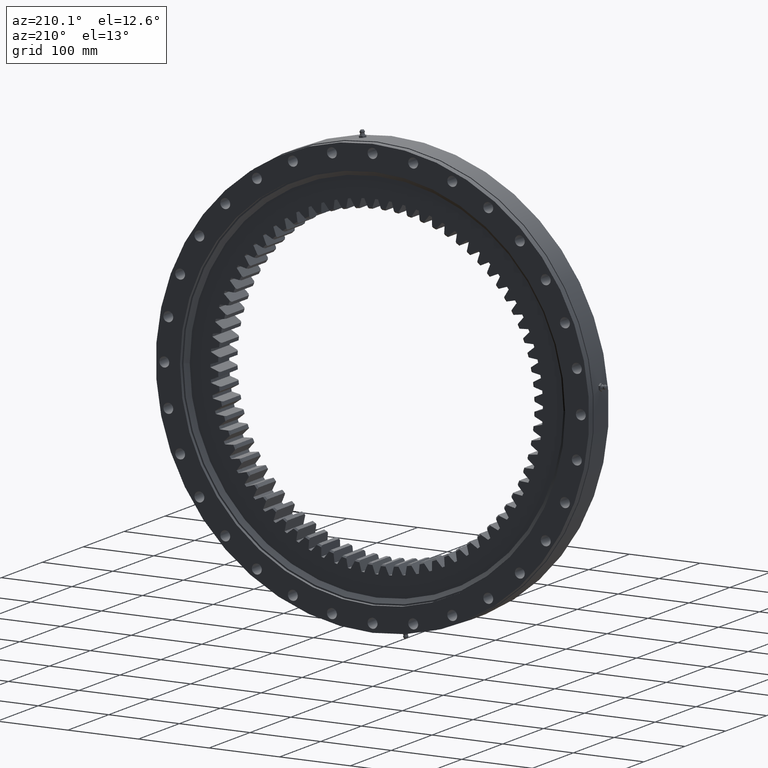
[diagram: clean part render]
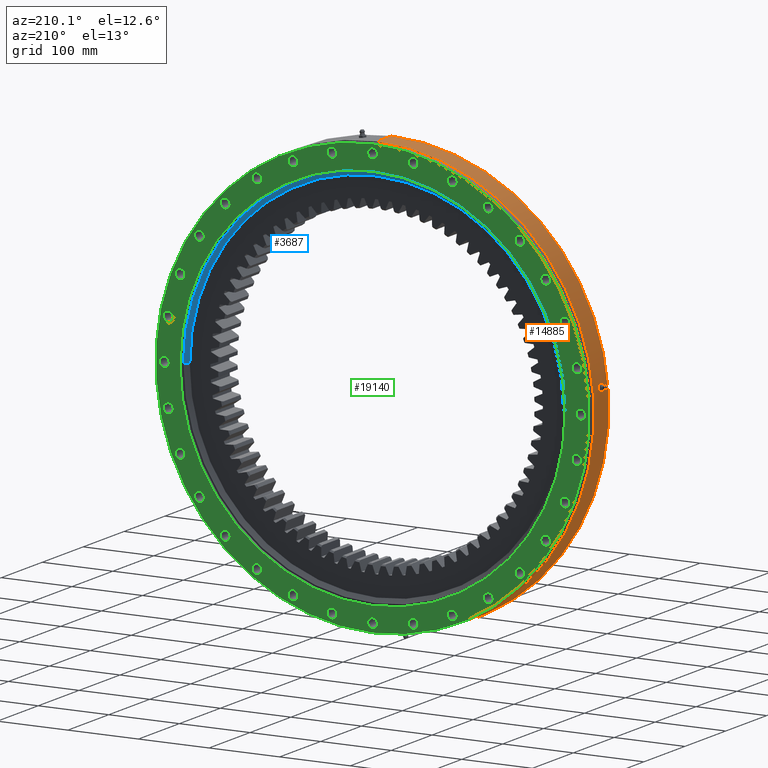
[diagram: same view with three faces highlighted in distinct colors, each labeled with its STEP entity id]
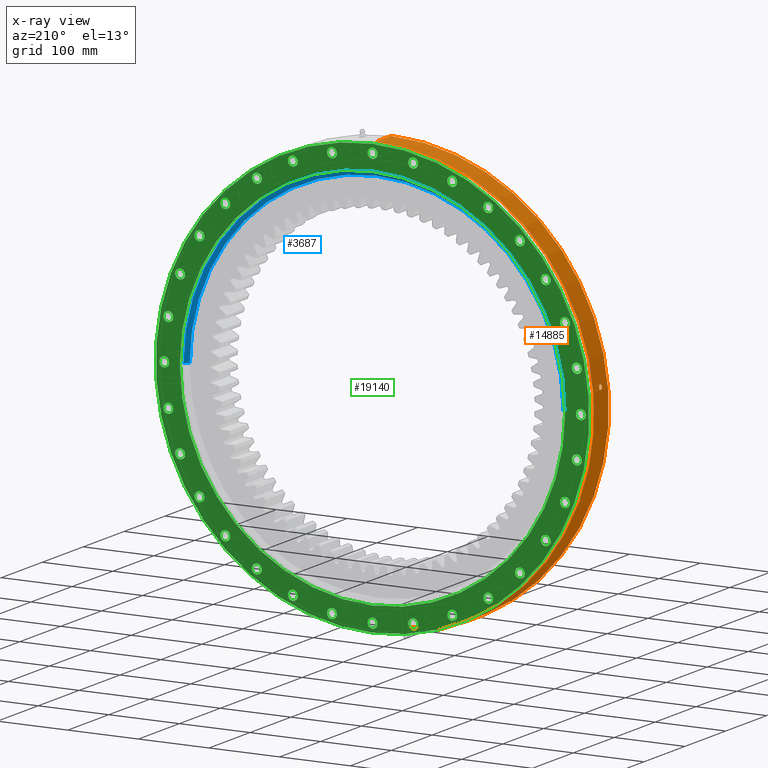
[diagram: x-ray of the same camera — body ghosted, the three highlighted faces saturated]
A machine part, auxiliary view with three faces highlighted in distinct colors.
The next image is the same camera in x-ray (body ghosted, the three faces saturated) — at least one of them is partly hidden behind the body in this view.
Their STEP definitions:

[orange] entity #14885 — the highlighted cylindrical surface (partial cylindrical patch) has radius 308 mm, axis along (0, -1, -0).
#81 = VERTEX_POINT ( 'NONE', #14028 ) ;
#211 = B_SPLINE_CURVE_WITH_KNOTS ( 'NONE', 3,
 ( #9509, #11498, #22998, #14947, #18768, #24747, #15625, #20543, #8373, #22560, #254, #25499, #10825, #25049, #898, #19550, #22351, #16332, #4163, #3736, #20332, #23296, #14895, #6840, #1229, #15594, #19003, #17619, #6391, #3986, #16511, #8182 ),
 .UNSPECIFIED., .F., .F.,
 ( 4, 2, 2, 2, 2, 2, 2, 2, 2, 2, 2, 2, 2, 2, 2, 4 ),
 ( 0.01094268840921393600, 0.01162645201930552500, 0.01231021562939711400, 0.01299397923948870100, 0.01367774284958028900, 0.01436150645967187700, 0.01504527006976346500, 0.01572903367985505100, 0.01641279728994663900, 0.01709656090003822800, 0.01778032451012981700, 0.01846408812022140600, 0.01914785173031299100, 0.01983161534040458300, 0.02051537895049616900, 0.02188290617067933600 ),
 .UNSPECIFIED. ) ;
#254 = CARTESIAN_POINT ( 'NONE',  ( -32.31382481102055900, -2.782416042074762300, -306.3002659919058600 ) ) ;
#883 = CARTESIAN_POINT ( 'NONE',  ( -26.70418341072438700, 0.2312551401254001900, -306.8401645618878300 ) ) ;
#898 = CARTESIAN_POINT ( 'NONE',  ( -31.09303156257310600, -3.387788332490469400, -306.4266199670360000 ) ) ;
#934 = CARTESIAN_POINT ( 'NONE',  ( -26.70418341072438300, -4.705334252509339700E-009, -306.8401645618877800 ) ) ;
#982 = CARTESIAN_POINT ( 'NONE',  ( -26.81538325130920300, 0.9060106631864017800, -306.8304698005734400 ) ) ;
#1009 = DIRECTION ( 'NONE',  ( 1.173697223544192200E-016, -1.000000000000000000, -3.494217355385783800E-017 ) ) ;
#1083 = AXIS2_PLACEMENT_3D ( 'NONE', #26132, #26076, #26223 ) ;
#1133 = CARTESIAN_POINT ( 'NONE',  ( -26.72679387351402300, 0.4586450523872254700, -306.8381991639860200 ) ) ;
#1214 = CARTESIAN_POINT ( 'NONE',  ( -27.05748745574575100, 1.552199377077482900, -306.8092242622722100 ) ) ;
#1229 = CARTESIAN_POINT ( 'NONE',  ( -27.88811355290270600, -2.638066794423862500, -306.7348680209413500 ) ) ;
#1547 = CARTESIAN_POINT ( 'NONE',  ( 2.601341135008604100E-015, -22.16364734299516900, -7.744460120454373600E-016 ) ) ;
#1559 = CARTESIAN_POINT ( 'NONE',  ( -26.88243726378184200, 1.128303312779361800, -306.8246116050567000 ) ) ;
#1648 = CARTESIAN_POINT ( 'NONE',  ( -27.41765933822809500, 2.133733264266279000, -306.7772613677926200 ) ) ;
#1684 = CARTESIAN_POINT ( 'NONE',  ( -27.16460422819928400, 1.753246319129967200, -306.7997725113814300 ) ) ;
#1742 = CARTESIAN_POINT ( 'NONE',  ( -27.88663411988965600, 2.636754389741878600, -306.7350024376871100 ) ) ;
#1832 = DIRECTION ( 'NONE',  ( 5.551115123125782700E-017, -3.379331446708065600E-017, 1.000000000000000000 ) ) ;
#1845 = CARTESIAN_POINT ( 'NONE',  ( -27.56494094894448900, 2.313875409423551400, -306.7640789164624900 ) ) ;
#1863 = AXIS2_PLACEMENT_3D ( 'NONE', #9253, #18066, #3852 ) ;
#1927 = CARTESIAN_POINT ( 'NONE',  ( -28.44320917986191700, 3.037489673266183100, -306.6839096873543400 ) ) ;
#1966 = CARTESIAN_POINT ( 'NONE',  ( -28.06214998791868700, 2.781635794741369200, -306.7190120413573000 ) ) ;
#1979 = VERTEX_POINT ( 'NONE', #20901 ) ;
#2055 = CARTESIAN_POINT ( 'NONE',  ( -29.06546120678853400, 3.320722332250851200, -306.6255751279085200 ) ) ;
#2069 = VERTEX_POINT ( 'NONE', #8281 ) ;
#2114 = CARTESIAN_POINT ( 'NONE',  ( -28.64608862539953500, 3.146204392110441000, -306.6650387053433600 ) ) ;
#2199 = CARTESIAN_POINT ( 'NONE',  ( -29.73480891760899400, 3.477719691461731900, -306.5614003410971700 ) ) ;
#2290 = CARTESIAN_POINT ( 'NONE',  ( -29.28504489855638900, 3.387877180266397400, -306.6046920478399300 ) ) ;
#2400 = CARTESIAN_POINT ( 'NONE',  ( -306.3399663359676900, -3.036882670198446800, 31.93526649188638800 ) ) ;
#2404 = CARTESIAN_POINT ( 'NONE',  ( -306.3002659919056900, -2.782416042074800500, 32.31382481102164700 ) ) ;
#2419 = CARTESIAN_POINT ( 'NONE',  ( -30.41523017895151800, 3.500080694542077300, -306.4946425096217700 ) ) ;
#2428 = CARTESIAN_POINT ( 'NONE',  ( -306.2813281851207400, -2.634578800328845700, 32.49267609729105300 ) ) ;
#2439 = CARTESIAN_POINT ( 'NONE',  ( -29.96085895161793600, 3.499918856285876100, -306.5393923214775200 ) ) ;
#2480 = CARTESIAN_POINT ( 'NONE',  ( -31.09260883057866900, 3.387954094253905300, -306.4266634242155200 ) ) ;
#2531 = CARTESIAN_POINT ( 'NONE',  ( -30.64595411905899200, 3.477323552654442400, -306.4716559118010100 ) ) ;
#2564 = CARTESIAN_POINT ( 'NONE',  ( -31.73121809014811800, 3.146548806230207200, -306.3611833988106800 ) ) ;
#2600 = CARTESIAN_POINT ( 'NONE',  ( -31.30967423375808400, 3.321848024583955400, -306.4045515236028900 ) ) ;
#2616 = CARTESIAN_POINT ( 'NONE',  ( -32.31236299707052200, 2.783475192935553000, -306.3004197982739900 ) ) ;
#2646 = CARTESIAN_POINT ( 'NONE',  ( -31.93511104547337700, 3.036910292944371200, -306.3399821335220300 ) ) ;
#2715 = CARTESIAN_POINT ( 'NONE',  ( -306.1540445795807800, -4.705376969141206700E-009, 33.67047649743084000 ) ) ;
#2850 = CARTESIAN_POINT ( 'NONE',  ( -32.81315193744337900, 2.312150383497737000, -306.2471612333405900 ) ) ;
#2992 = CARTESIAN_POINT ( 'NONE',  ( -32.48816911038438300, 2.638804789441247000, -306.2818074443935100 ) ) ;
#3136 = CARTESIAN_POINT ( 'NONE',  ( -33.20946980315761000, 1.755854945625480200, -306.2044205767142600 ) ) ;
#3168 = CARTESIAN_POINT ( 'NONE',  ( -32.95743829058297800, 2.134966687998932000, -306.2316497794612900 ) ) ;
#3205 = CARTESIAN_POINT ( 'NONE',  ( -33.49303147733331100, 1.127095132318222600, -306.1735203446151600 ) ) ;
#3224 = CARTESIAN_POINT ( 'NONE',  ( -33.31836645307080100, 1.551321002645105600, -306.1925769424449300 ) ) ;
#3290 = CARTESIAN_POINT ( 'NONE',  ( -33.64772319567483500, 0.4604155606401580900, -306.1565493739283900 ) ) ;
#3370 = CARTESIAN_POINT ( 'NONE',  ( -33.55879653811391700, 0.9088845004940548900, -306.1663096679922700 ) ) ;
#3609 = CARTESIAN_POINT ( 'NONE',  ( -306.6255751279085800, 3.320722332250804200, 29.06546120678960300 ) ) ;
#3620 = CARTESIAN_POINT ( 'NONE',  ( -33.67047649742976000, -4.705333113613079300E-009, -306.1540445795809000 ) ) ;
#3703 = CARTESIAN_POINT ( 'NONE',  ( -306.6046920478398200, 3.387877180266352500, 29.28504489855746200 ) ) ;
#3713 = CARTESIAN_POINT ( 'NONE',  ( -33.67047649742976700, 0.2284308184249272100, -306.1540445795809000 ) ) ;
#3736 = CARTESIAN_POINT ( 'NONE',  ( -29.29009589290728100, -3.389071983906061000, -306.6042078706227000 ) ) ;
#3786 = CARTESIAN_POINT ( 'NONE',  ( -306.5614003410970000, 3.477719691461685200, 29.73480891761006400 ) ) ;
#3852 = DIRECTION ( 'NONE',  ( 5.551115123125782700E-017, -3.379331446708065600E-017, 1.000000000000000000 ) ) ;
#3857 = EDGE_CURVE ( 'NONE', #12473, #20716, #26082, .T. ) ;
#3874 = CARTESIAN_POINT ( 'NONE',  ( -306.5393923214773500, 3.499918856285831200, 29.96085895161900900 ) ) ;
#3964 = CARTESIAN_POINT ( 'NONE',  ( -306.4946425096217100, 3.500080694542033700, 30.41523017895261200 ) ) ;
#3986 = CARTESIAN_POINT ( 'NONE',  ( -26.79676139966393200, -0.9217518475116526200, -306.8321433145628100 ) ) ;
#4057 = CARTESIAN_POINT ( 'NONE',  ( -306.4716559118008900, 3.477323552654397500, 30.64595411906006800 ) ) ;
#4103 = CARTESIAN_POINT ( 'NONE',  ( -306.2471423964211700, -2.311675905303282700, 32.81331694344931500 ) ) ;
#4133 = CARTESIAN_POINT ( 'NONE',  ( -306.4266634242153500, 3.387954094253861700, 31.09260883057972800 ) ) ;
#4161 = CARTESIAN_POINT ( 'NONE',  ( -306.2316594288396300, -2.135341746113353700, 32.95735346520672900 ) ) ;
#4163 = CARTESIAN_POINT ( 'NONE',  ( -29.73525787572123800, -3.477621237995803600, -306.5613550995169000 ) ) ;
#4165 = CARTESIAN_POINT ( 'NONE',  ( -306.2041605539273000, -1.751991760893867300, 33.21187202546956700 ) ) ;
#4221 = CARTESIAN_POINT ( 'NONE',  ( -306.4045515236028300, 3.321848024583911900, 31.30967423375914600 ) ) ;
#4302 = B_SPLINE_CURVE_WITH_KNOTS ( 'NONE', 3,
 ( #2715, #14068, #5103, #4697, #4640, #4614, #4165, #4161, #4103, #2428, #2404, #2400, #5148, #5120, #5184, #5178, #5510, #5316, #5600, #5562, #5537, #5661, #5608, #5696, #5702, #5748, #16147, #15059, #15035, #15006, #14889, #14865 ),
 .UNSPECIFIED., .F., .F.,
 ( 4, 2, 2, 2, 2, 2, 2, 2, 2, 2, 2, 2, 2, 2, 2, 4 ),
 ( 0.01094268840921394300, 0.01162645201930553000, 0.01231021562939711900, 0.01299397923948870600, 0.01367774284958029500, 0.01436150645967188200, 0.01504527006976346900, 0.01572903367985505800, 0.01641279728994664300, 0.01709656090003823200, 0.01778032451012982000, 0.01846408812022140600, 0.01914785173031299500, 0.01983161534040458300, 0.02051537895049616900, 0.02188290617067934600 ),
 .UNSPECIFIED. ) ;
#4308 = CARTESIAN_POINT ( 'NONE',  ( -306.3611833988105700, 3.146548806230164500, 31.73121809014919800 ) ) ;
#4404 = CARTESIAN_POINT ( 'NONE',  ( -306.3399821335219700, 3.036910292944329500, 31.93511104547445400 ) ) ;
#4498 = CARTESIAN_POINT ( 'NONE',  ( -306.3004197982738800, 2.783475192935511700, 32.31236299707158800 ) ) ;
#4614 = CARTESIAN_POINT ( 'NONE',  ( -306.1924610377210500, -1.548905644597826400, 33.31942976899648600 ) ) ;
#4640 = CARTESIAN_POINT ( 'NONE',  ( -306.1735545633196100, -1.127691353490316600, 33.49271685798918000 ) ) ;
#4671 = CARTESIAN_POINT ( 'NONE',  ( -306.2818074443933900, 2.638804789441199400, 32.48816911038546400 ) ) ;
#4697 = CARTESIAN_POINT ( 'NONE',  ( -306.1662287694330200, -0.9064373021002551900, 33.55953459587230700 ) ) ;
#4762 = CARTESIAN_POINT ( 'NONE',  ( -306.2044205767142600, 1.755854945625437500, 33.20946980315866200 ) ) ;
#4851 = CARTESIAN_POINT ( 'NONE',  ( -306.2471612333404800, 2.312150383497690000, 32.81315193744444500 ) ) ;
#4938 = CARTESIAN_POINT ( 'NONE',  ( -306.2316497794612400, 2.134966687998888900, 32.95743829058405100 ) ) ;
#5040 = CARTESIAN_POINT ( 'NONE',  ( -306.1925769424447000, 1.551321002645063700, 33.31836645307187400 ) ) ;
#5103 = CARTESIAN_POINT ( 'NONE',  ( -306.1564673209807100, -0.4553541139784355600, 33.64846978282490400 ) ) ;
#5120 = CARTESIAN_POINT ( 'NONE',  ( -306.4040624369972100, -3.320200858430309800, 31.31445816682302300 ) ) ;
#5148 = CARTESIAN_POINT ( 'NONE',  ( -306.3607494494853500, -3.144457866304869200, 31.73540554217888500 ) ) ;
#5151 = CARTESIAN_POINT ( 'NONE',  ( -306.1735203446151600, 1.127095132318180600, 33.49303147733437700 ) ) ;
#5178 = CARTESIAN_POINT ( 'NONE',  ( -306.4714598602748200, -3.477013169166962600, 30.64790901979234400 ) ) ;
#5184 = CARTESIAN_POINT ( 'NONE',  ( -306.4266199670359500, -3.387788332490513800, 31.09303156257418300 ) ) ;
#5207 = CARTESIAN_POINT ( 'NONE',  ( -306.1663096679921000, 0.9088845004940135900, 33.55879653811499700 ) ) ;
#5233 = CARTESIAN_POINT ( 'NONE',  ( -306.1565493739283300, 0.4604155606401171300, 33.64772319567592300 ) ) ;
#5289 = CARTESIAN_POINT ( 'NONE',  ( -306.1540445795807800, 0.2284308184248841400, 33.67047649743083300 ) ) ;
#5309 = ORIENTED_EDGE ( 'NONE', *, *, #23391, .T. ) ;
#5316 = CARTESIAN_POINT ( 'NONE',  ( -306.5392283157588600, -3.500192934624133800, 29.96255590385019100 ) ) ;
#5323 = CARTESIAN_POINT ( 'NONE',  ( -306.1540445795807800, -4.705376969141206700E-009, 33.67047649743084000 ) ) ;
#5510 = CARTESIAN_POINT ( 'NONE',  ( -306.4939859768545600, -3.499804596878527200, 30.42186405748376600 ) ) ;
#5537 = CARTESIAN_POINT ( 'NONE',  ( -306.6252128359194600, -3.322148246947753200, 29.06929499784071800 ) ) ;
#5562 = CARTESIAN_POINT ( 'NONE',  ( -306.6042078706225900, -3.389071983906106300, 29.29009589290836500 ) ) ;
#5600 = CARTESIAN_POINT ( 'NONE',  ( -306.5613550995167900, -3.477621237995848900, 29.73525787572231100 ) ) ;
#5608 = CARTESIAN_POINT ( 'NONE',  ( -306.6836159299257900, -3.039194158425509300, 28.44636839537259800 ) ) ;
#5661 = CARTESIAN_POINT ( 'NONE',  ( -306.6649898803430000, -3.146594747246971700, 28.64662353635232300 ) ) ;
#5696 = CARTESIAN_POINT ( 'NONE',  ( -306.7185049163921300, -2.785758881017044600, 28.06768420430446300 ) ) ;
#5702 = CARTESIAN_POINT ( 'NONE',  ( -306.7348680209411800, -2.638066794423905100, 27.88811355290377800 ) ) ;
#5748 = CARTESIAN_POINT ( 'NONE',  ( -306.7639761713929800, -2.315195117686285300, 27.56608533834346600 ) ) ;
#5803 = CARTESIAN_POINT ( 'NONE',  ( -5.481655599296589900E-014, 18.00000000000008500, -308.0000000000000000 ) ) ;
#5804 = VERTEX_POINT ( 'NONE', #19515 ) ;
#6391 = CARTESIAN_POINT ( 'NONE',  ( -27.05811430666643600, -1.553253985867819200, -306.8091688628244900 ) ) ;
#6435 = CARTESIAN_POINT ( 'NONE',  ( 1.921008958160694200E-014, -17.99999999999988600, 308.0000000000000000 ) ) ;
#6455 = AXIS2_PLACEMENT_3D ( 'NONE', #1547, #1009, #1832 ) ;
#6840 = CARTESIAN_POINT ( 'NONE',  ( -28.06768420430339000, -2.785758881016996200, -306.7185049163923100 ) ) ;
#6885 = FACE_OUTER_BOUND ( 'NONE', #11462, .T. ) ;
#6893 = EDGE_CURVE ( 'NONE', #81, #5804, #211, .T. ) ;
#7077 = CARTESIAN_POINT ( 'NONE',  ( -306.6650387053432500, 3.146204392110393000, 28.64608862540059800 ) ) ;
#7248 = CARTESIAN_POINT ( 'NONE',  ( -306.6839096873543400, 3.037489673266136900, 28.44320917986299300 ) ) ;
#7250 = EDGE_CURVE ( 'NONE', #20716, #1979, #25615, .T. ) ;
#7277 = CARTESIAN_POINT ( 'NONE',  ( -306.7190120413573600, 2.781635794741323100, 28.06214998791976700 ) ) ;
#7335 = CARTESIAN_POINT ( 'NONE',  ( -306.7350024376869400, 2.636754389741834200, 27.88663411989072900 ) ) ;
#7612 = CARTESIAN_POINT ( 'NONE',  ( -306.7640789164624400, 2.313875409423506600, 27.56494094894556600 ) ) ;
#7705 = CARTESIAN_POINT ( 'NONE',  ( -306.7772613677924500, 2.133733264266232300, 27.41765933822916800 ) ) ;
#7784 = CARTESIAN_POINT ( 'NONE',  ( -306.7997725113813200, 1.753246319129919500, 27.16460422820035300 ) ) ;
#7877 = CARTESIAN_POINT ( 'NONE',  ( -306.8092242622722100, 1.552199377077439400, 27.05748745574682000 ) ) ;
#7968 = CARTESIAN_POINT ( 'NONE',  ( -306.8246116050565900, 1.128303312779316900, 26.88243726378291900 ) ) ;
#8054 = CARTESIAN_POINT ( 'NONE',  ( -306.8304698005734400, 0.9060106631863560400, 26.81538325131028000 ) ) ;
#8147 = CARTESIAN_POINT ( 'NONE',  ( -306.8381991639859100, 0.4586450523871791200, 26.72679387351509600 ) ) ;
#8182 = CARTESIAN_POINT ( 'NONE',  ( -26.70418341072438300, -4.705334252509339700E-009, -306.8401645618877800 ) ) ;
#8281 = CARTESIAN_POINT ( 'NONE',  ( -306.1540445795807800, -4.705376969141206700E-009, 33.67047649743084000 ) ) ;
#8319 = CARTESIAN_POINT ( 'NONE',  ( -306.8401645618877200, 0.2312551401253558900, 26.70418341072545900 ) ) ;
#8373 = CARTESIAN_POINT ( 'NONE',  ( -32.81331694344823500, -2.311675905303241000, -306.2471423964212200 ) ) ;
#8496 = EDGE_LOOP ( 'NONE', ( #8848, #5309 ) ) ;
#8783 = CARTESIAN_POINT ( 'NONE',  ( -306.8401645618877200, -4.705377941234104300E-009, 26.70418341072545900 ) ) ;
#8848 = ORIENTED_EDGE ( 'NONE', *, *, #14836, .T. ) ;
#9253 = CARTESIAN_POINT ( 'NONE',  ( 2.112655002379531500E-015, -17.99999999999987600, -6.289591239694367800E-016 ) ) ;
#9509 = CARTESIAN_POINT ( 'NONE',  ( -33.67047649742976000, -4.705333113613079300E-009, -306.1540445795809000 ) ) ;
#9590 = VECTOR ( 'NONE', #14259, 1000.000000000000000 ) ;
#9933 = CARTESIAN_POINT ( 'NONE',  ( -5.221521485795728300E-014, -22.16364734299515900, -308.0000000000000000 ) ) ;
#10013 = VECTOR ( 'NONE', #12331, 1000.000000000000000 ) ;
#10825 = CARTESIAN_POINT ( 'NONE',  ( -31.73540554217780500, -3.144457866304826200, -306.3607494494855200 ) ) ;
#11028 = CARTESIAN_POINT ( 'NONE',  ( -306.8401645618877200, -4.705377941234104300E-009, 26.70418341072545900 ) ) ;
#11058 = CYLINDRICAL_SURFACE ( 'NONE', #6455, 308.0000000000000000 ) ;
#11462 = EDGE_LOOP ( 'NONE', ( #26201, #22384, #17979, #24105 ) ) ;
#11498 = CARTESIAN_POINT ( 'NONE',  ( -33.67047649742976000, -0.2283792525665416800, -306.1540445795808400 ) ) ;
#12331 = DIRECTION ( 'NONE',  ( 1.173697223544192200E-016, -1.000000000000000000, -3.494217355385783800E-017 ) ) ;
#12473 = VERTEX_POINT ( 'NONE', #13596 ) ;
#13596 = CARTESIAN_POINT ( 'NONE',  ( 1.709743457922740800E-014, 18.00000000000002800, 308.0000000000000000 ) ) ;
#13859 = EDGE_CURVE ( 'NONE', #5804, #81, #17204, .T. ) ;
#14028 = CARTESIAN_POINT ( 'NONE',  ( -33.67047649742976000, -4.705333113613079300E-009, -306.1540445795809000 ) ) ;
#14068 = CARTESIAN_POINT ( 'NONE',  ( -306.1540445795807800, -0.2283792525665842600, 33.67047649743084000 ) ) ;
#14259 = DIRECTION ( 'NONE',  ( 1.173697223544192200E-016, -1.000000000000000000, -3.494217355385783800E-017 ) ) ;
#14511 = CIRCLE ( 'NONE', #1083, 308.0000000000000000 ) ;
#14836 = EDGE_CURVE ( 'NONE', #20127, #2069, #15005, .T. ) ;
#14865 = CARTESIAN_POINT ( 'NONE',  ( -306.8401645618877200, -4.705377941234104300E-009, 26.70418341072545900 ) ) ;
#14885 = ADVANCED_FACE ( 'NONE', ( #17041, #22422, #6885 ), #11058, .T. ) ;
#14889 = CARTESIAN_POINT ( 'NONE',  ( -306.8401645618877200, -0.4624058684741265700, 26.70418341072545600 ) ) ;
#14895 = CARTESIAN_POINT ( 'NONE',  ( -28.44636839537152500, -3.039194158425463600, -306.6836159299259600 ) ) ;
#14947 = CARTESIAN_POINT ( 'NONE',  ( -33.55953459587124100, -0.9064373021002126700, -306.1662287694331900 ) ) ;
#15005 = B_SPLINE_CURVE_WITH_KNOTS ( 'NONE', 3,
 ( #8783, #8319, #8147, #8054, #7968, #7877, #7784, #7705, #7612, #7335, #7277, #7248, #7077, #3609, #3703, #3786, #3874, #3964, #4057, #4133, #4221, #4308, #4404, #4498, #4671, #4851, #4938, #4762, #5040, #5151, #5207, #5233, #5289, #5323 ),
 .UNSPECIFIED., .F., .F.,
 ( 4, 2, 2, 2, 2, 2, 2, 2, 2, 2, 2, 2, 2, 2, 2, 2, 4 ),
 ( 1.519533887187208900E-018, 0.0006839180255758731700, 0.001367836051151744800, 0.002051754076727616700, 0.002735672102303487500, 0.003419590127879358300, 0.004103508153455229900, 0.004787426179031100700, 0.005471344204606971500, 0.006155262230182842300, 0.006839180255758713900, 0.007523098281334586500, 0.008207016306910458100, 0.008890934332486329800, 0.009574852358062199700, 0.01025877038363807300, 0.01094268840921394300 ),
 .UNSPECIFIED. ) ;
#15006 = CARTESIAN_POINT ( 'NONE',  ( -306.8321433145625900, -0.9217518475116963600, 26.79676139966499800 ) ) ;
#15035 = CARTESIAN_POINT ( 'NONE',  ( -306.8091688628242700, -1.553253985867860500, 27.05811430666749800 ) ) ;
#15059 = CARTESIAN_POINT ( 'NONE',  ( -306.7995655485477800, -1.757443031469447100, 27.16694567322360100 ) ) ;
#15594 = CARTESIAN_POINT ( 'NONE',  ( -27.56608533834239700, -2.315195117686240000, -306.7639761713932100 ) ) ;
#15625 = CARTESIAN_POINT ( 'NONE',  ( -33.21187202546849400, -1.751991760893822000, -306.2041605539274100 ) ) ;
#15751 = EDGE_CURVE ( 'NONE', #23151, #12473, #14511, .T. ) ;
#16147 = CARTESIAN_POINT ( 'NONE',  ( -306.7768973580730300, -2.139169396805481700, 27.42173600164462100 ) ) ;
#16332 = CARTESIAN_POINT ( 'NONE',  ( -29.96255590384910800, -3.500192934624088100, -306.5392283157589800 ) ) ;
#16511 = CARTESIAN_POINT ( 'NONE',  ( -26.70418341072439400, -0.4624058684740826600, -306.8401645618879500 ) ) ;
#16518 = CARTESIAN_POINT ( 'NONE',  ( 1.969877571423601400E-014, -22.16364734299518000, 308.0000000000000000 ) ) ;
#17041 = FACE_BOUND ( 'NONE', #8496, .T. ) ;
#17204 = B_SPLINE_CURVE_WITH_KNOTS ( 'NONE', 3,
 ( #934, #883, #1133, #982, #1559, #1214, #1684, #1648, #1845, #1742, #1966, #1927, #2114, #2055, #2290, #2199, #2439, #2419, #2531, #2480, #2600, #2564, #2646, #2616, #2992, #2850, #3168, #3136, #3224, #3205, #3370, #3290, #3713, #3620 ),
 .UNSPECIFIED., .F., .F.,
 ( 4, 2, 2, 2, 2, 2, 2, 2, 2, 2, 2, 2, 2, 2, 2, 2, 4 ),
 ( 2.685796961474260100E-018, 0.0006839180255758735000, 0.001367836051151744200, 0.002051754076727615000, 0.002735672102303485800, 0.003419590127879356500, 0.004103508153455227300, 0.004787426179031098100, 0.005471344204606968900, 0.006155262230182839700, 0.006839180255758710500, 0.007523098281334581300, 0.008207016306910452900, 0.008890934332486322800, 0.009574852358062194500, 0.01025877038363806600, 0.01094268840921393600 ),
 .UNSPECIFIED. ) ;
#17619 = CARTESIAN_POINT ( 'NONE',  ( -27.16694567322252900, -1.757443031469404300, -306.7995655485478900 ) ) ;
#17979 = ORIENTED_EDGE ( 'NONE', *, *, #7250, .F. ) ;
#18066 = DIRECTION ( 'NONE',  ( 1.173697223544192200E-016, -1.000000000000000000, -3.494217355385783800E-017 ) ) ;
#18296 = ORIENTED_EDGE ( 'NONE', *, *, #6893, .T. ) ;
#18314 = ORIENTED_EDGE ( 'NONE', *, *, #13859, .T. ) ;
#18768 = CARTESIAN_POINT ( 'NONE',  ( -33.49271685798810700, -1.127691353490277300, -306.1735545633197800 ) ) ;
#19003 = CARTESIAN_POINT ( 'NONE',  ( -27.42173600164355600, -2.139169396805439000, -306.7768973580731400 ) ) ;
#19515 = CARTESIAN_POINT ( 'NONE',  ( -26.70418341072438300, -4.705334252509339700E-009, -306.8401645618877800 ) ) ;
#19550 = CARTESIAN_POINT ( 'NONE',  ( -30.64790901979127100, -3.477013169166917700, -306.4714598602749900 ) ) ;
#20127 = VERTEX_POINT ( 'NONE', #11028 ) ;
#20332 = CARTESIAN_POINT ( 'NONE',  ( -29.06929499783964800, -3.322148246947707500, -306.6252128359195700 ) ) ;
#20543 = CARTESIAN_POINT ( 'NONE',  ( -32.95735346520567100, -2.135341746113308800, -306.2316594288396900 ) ) ;
#20716 = VERTEX_POINT ( 'NONE', #6435 ) ;
#20901 = CARTESIAN_POINT ( 'NONE',  ( -5.481655599296589900E-014, -17.99999999999986900, -308.0000000000000000 ) ) ;
#20995 = LINE ( 'NONE', #9933, #9590 ) ;
#21165 = EDGE_CURVE ( 'NONE', #23151, #1979, #20995, .T. ) ;
#22351 = CARTESIAN_POINT ( 'NONE',  ( -30.42186405748269400, -3.499804596878482800, -306.4939859768546200 ) ) ;
#22384 = ORIENTED_EDGE ( 'NONE', *, *, #21165, .T. ) ;
#22422 = FACE_BOUND ( 'NONE', #23899, .T. ) ;
#22560 = CARTESIAN_POINT ( 'NONE',  ( -32.49267609729000100, -2.634578800328804000, -306.2813281851208000 ) ) ;
#22998 = CARTESIAN_POINT ( 'NONE',  ( -33.64846978282384500, -0.4553541139783933200, -306.1564673209807100 ) ) ;
#23151 = VERTEX_POINT ( 'NONE', #5803 ) ;
#23296 = CARTESIAN_POINT ( 'NONE',  ( -28.64662353635125000, -3.146594747246926400, -306.6649898803432300 ) ) ;
#23391 = EDGE_CURVE ( 'NONE', #2069, #20127, #4302, .T. ) ;
#23899 = EDGE_LOOP ( 'NONE', ( #18314, #18296 ) ) ;
#24105 = ORIENTED_EDGE ( 'NONE', *, *, #3857, .F. ) ;
#24747 = CARTESIAN_POINT ( 'NONE',  ( -33.31942976899539800, -1.548905644597786900, -306.1924610377212700 ) ) ;
#25049 = CARTESIAN_POINT ( 'NONE',  ( -31.31445816682195400, -3.320200858430266700, -306.4040624369973200 ) ) ;
#25499 = CARTESIAN_POINT ( 'NONE',  ( -31.93526649188530100, -3.036882670198408600, -306.3399663359677400 ) ) ;
#25615 = CIRCLE ( 'NONE', #1863, 308.0000000000000000 ) ;
#26076 = DIRECTION ( 'NONE',  ( -1.173697223544192200E-016, 1.000000000000000000, 8.822830751849692900E-017 ) ) ;
#26082 = LINE ( 'NONE', #16518, #10013 ) ;
#26132 = CARTESIAN_POINT ( 'NONE',  ( -2.112655002379552800E-015, 18.00000000000005700, 6.289591239694430900E-016 ) ) ;
#26201 = ORIENTED_EDGE ( 'NONE', *, *, #15751, .F. ) ;
#26223 = DIRECTION ( 'NONE',  ( -5.551115123125783900E-017, 9.011550524554842000E-017, -1.000000000000000000 ) ) ;

[blue] entity #3687 — the highlighted conical surface has half-angle 49.914 deg.
#217 = CIRCLE ( 'NONE', #1857, 270.7500000000000000 ) ;
#315 = DIRECTION ( 'NONE',  ( -1.000000000000000000, 1.793989190299191000E-016, 0.0000000000000000000 ) ) ;
#876 = DIRECTION ( 'NONE',  ( 1.836909530733565900E-016, 1.000000000000000000, -0.0000000000000000000 ) ) ;
#993 = CARTESIAN_POINT ( 'NONE',  ( 270.7500000000000000, 23.04999999999988700, 3.315731208691458600E-014 ) ) ;
#1331 = EDGE_CURVE ( 'NONE', #14504, #21258, #11090, .T. ) ;
#1413 = LINE ( 'NONE', #20019, #6206 ) ;
#1857 = AXIS2_PLACEMENT_3D ( 'NONE', #25389, #25276, #315 ) ;
#2261 = EDGE_CURVE ( 'NONE', #21258, #3096, #1413, .T. ) ;
#3081 = DIRECTION ( 'NONE',  ( 0.7650765054985573200, 0.6439393921279517000, 9.369484935616503600E-017 ) ) ;
#3096 = VERTEX_POINT ( 'NONE', #993 ) ;
#3473 = ORIENTED_EDGE ( 'NONE', *, *, #23731, .T. ) ;
#3687 = ADVANCED_FACE ( 'NONE', ( #8396 ), #13193, .F. ) ;
#4111 = CARTESIAN_POINT ( 'NONE',  ( -5.056571283703338100E-015, 17.99999999999993200, 0.0000000000000000000 ) ) ;
#6206 = VECTOR ( 'NONE', #3081, 1000.000000000000100 ) ;
#6825 = CARTESIAN_POINT ( 'NONE',  ( -4.128931970682887200E-015, 23.04999999999993700, 0.0000000000000000000 ) ) ;
#8396 = FACE_OUTER_BOUND ( 'NONE', #23547, .T. ) ;
#8455 = AXIS2_PLACEMENT_3D ( 'NONE', #6825, #876, #21212 ) ;
#9040 = ORIENTED_EDGE ( 'NONE', *, *, #2261, .F. ) ;
#9784 = CARTESIAN_POINT ( 'NONE',  ( -270.7500000000000000, 23.04999999999998300, 0.0000000000000000000 ) ) ;
#11090 = CIRCLE ( 'NONE', #15898, 264.7500000000000000 ) ;
#11886 = CARTESIAN_POINT ( 'NONE',  ( 264.7500000000000000, 17.99999999999988300, 3.278991804717038000E-014 ) ) ;
#12146 = ORIENTED_EDGE ( 'NONE', *, *, #1331, .F. ) ;
#13031 = DIRECTION ( 'NONE',  ( -1.000000000000000000, 1.834646169116169800E-016, 0.0000000000000000000 ) ) ;
#13122 = VERTEX_POINT ( 'NONE', #9784 ) ;
#13193 = CONICAL_SURFACE ( 'NONE', #8455, 270.7500000000000000, 0.8711601305813102500 ) ;
#13421 = CARTESIAN_POINT ( 'NONE',  ( -264.7500000000000000, 17.99999999999998200, 0.0000000000000000000 ) ) ;
#13942 = DIRECTION ( 'NONE',  ( 1.836909530733565900E-016, 1.000000000000000000, -0.0000000000000000000 ) ) ;
#13986 = DIRECTION ( 'NONE',  ( -0.7650765054985571000, 0.6439393921279519300, 0.0000000000000000000 ) ) ;
#14504 = VERTEX_POINT ( 'NONE', #13421 ) ;
#15196 = EDGE_CURVE ( 'NONE', #13122, #3096, #217, .T. ) ;
#15390 = CARTESIAN_POINT ( 'NONE',  ( -270.7500000000000000, 23.04999999999998300, 0.0000000000000000000 ) ) ;
#15898 = AXIS2_PLACEMENT_3D ( 'NONE', #4111, #13942, #13031 ) ;
#18327 = LINE ( 'NONE', #15390, #24312 ) ;
#20019 = CARTESIAN_POINT ( 'NONE',  ( 270.7500000000000000, 23.04999999999988700, 3.315731208691458600E-014 ) ) ;
#21212 = DIRECTION ( 'NONE',  ( -1.000000000000000000, 1.793989190299191000E-016, 0.0000000000000000000 ) ) ;
#21258 = VERTEX_POINT ( 'NONE', #11886 ) ;
#23547 = EDGE_LOOP ( 'NONE', ( #9040, #12146, #3473, #23655 ) ) ;
#23655 = ORIENTED_EDGE ( 'NONE', *, *, #15196, .T. ) ;
#23731 = EDGE_CURVE ( 'NONE', #14504, #13122, #18327, .T. ) ;
#24312 = VECTOR ( 'NONE', #13986, 1000.000000000000100 ) ;
#25276 = DIRECTION ( 'NONE',  ( 1.836909530733565900E-016, 1.000000000000000000, -0.0000000000000000000 ) ) ;
#25389 = CARTESIAN_POINT ( 'NONE',  ( -4.128931970682887200E-015, 23.04999999999993700, 0.0000000000000000000 ) ) ;

[green] entity #19140 — the highlighted planar face has unit normal (0, -1, -0).
#9 = EDGE_LOOP ( 'NONE', ( #23477, #22308 ) ) ;
#63 = DIRECTION ( 'NONE',  ( 0.7071067811865475700, 0.0000000000000000000, 0.7071067811865475700 ) ) ;
#140 = EDGE_CURVE ( 'NONE', #15918, #16459, #13641, .T. ) ;
#168 = VERTEX_POINT ( 'NONE', #20396 ) ;
#203 = EDGE_LOOP ( 'NONE', ( #22097, #16017 ) ) ;
#220 = VERTEX_POINT ( 'NONE', #15742 ) ;
#349 = EDGE_CURVE ( 'NONE', #17696, #5561, #9216, .T. ) ;
#394 = FACE_BOUND ( 'NONE', #6878, .T. ) ;
#410 = VERTEX_POINT ( 'NONE', #25400 ) ;
#420 = AXIS2_PLACEMENT_3D ( 'NONE', #5793, #9219, #8834 ) ;
#487 = CARTESIAN_POINT ( 'NONE',  ( -265.5444620908289700, 28.00000000000001100, -112.8916125477026800 ) ) ;
#490 = EDGE_CURVE ( 'NONE', #14542, #220, #1195, .T. ) ;
#501 = CARTESIAN_POINT ( 'NONE',  ( 112.8916125477037400, 28.00000000000006400, -279.5444620908285700 ) ) ;
#521 = DIRECTION ( 'NONE',  ( 1.173697223544192200E-016, -1.000000000000000000, -3.494217355385783800E-017 ) ) ;
#540 = DIRECTION ( 'NONE',  ( -0.9238795325112820800, 0.0000000000000000000, 0.3826834323651010500 ) ) ;
#541 = VERTEX_POINT ( 'NONE', #21416 ) ;
#565 = CARTESIAN_POINT ( 'NONE',  ( 294.9999999999999400, 28.00000000000007500, 3.256729816710044700E-012 ) ) ;
#629 = CIRCLE ( 'NONE', #4232, 7.000000000000007100 ) ;
#655 = AXIS2_PLACEMENT_3D ( 'NONE', #22633, #21068, #20524 ) ;
#738 = EDGE_CURVE ( 'NONE', #25007, #21137, #6299, .T. ) ;
#770 = AXIS2_PLACEMENT_3D ( 'NONE', #7206, #11916, #21389 ) ;
#840 = EDGE_LOOP ( 'NONE', ( #10752, #25411 ) ) ;
#873 = DIRECTION ( 'NONE',  ( 0.3826834323650897800, 0.0000000000000000000, 0.9238795325112868500 ) ) ;
#946 = CIRCLE ( 'NONE', #20226, 7.000000000000004400 ) ;
#960 = ORIENTED_EDGE ( 'NONE', *, *, #17623, .T. ) ;
#965 = AXIS2_PLACEMENT_3D ( 'NONE', #2649, #16546, #4381 ) ;
#968 = EDGE_CURVE ( 'NONE', #9151, #23601, #7249, .T. ) ;
#1022 = FACE_BOUND ( 'NONE', #13566, .T. ) ;
#1048 = ORIENTED_EDGE ( 'NONE', *, *, #18374, .T. ) ;
#1053 = ORIENTED_EDGE ( 'NONE', *, *, #7918, .T. ) ;
#1059 = CARTESIAN_POINT ( 'NONE',  ( 112.8916125476977600, 28.00000000000004300, 272.5444620908311900 ) ) ;
#1151 = EDGE_CURVE ( 'NONE', #13695, #2005, #24968, .T. ) ;
#1171 = CARTESIAN_POINT ( 'NONE',  ( -163.8932187407811500, 28.00000000000002500, -238.2835356292518200 ) ) ;
#1174 = CARTESIAN_POINT ( 'NONE',  ( -272.5444620908289700, 28.00000000000001100, -112.8916125477026800 ) ) ;
#1186 = CARTESIAN_POINT ( 'NONE',  ( 282.3316577189522700, 28.00000000000007100, 57.55164499476114800 ) ) ;
#1192 = EDGE_LOOP ( 'NONE', ( #7676, #19185 ) ) ;
#1195 = CIRCLE ( 'NONE', #12020, 7.000000000000013300 ) ;
#1224 = EDGE_CURVE ( 'NONE', #13389, #4222, #6919, .T. ) ;
#1287 = DIRECTION ( 'NONE',  ( 0.9807852804032309900, 0.0000000000000000000, 0.1950903220161257500 ) ) ;
#1306 = AXIS2_PLACEMENT_3D ( 'NONE', #25565, #13493, #1287 ) ;
#1379 = CARTESIAN_POINT ( 'NONE',  ( 238.2835356292523000, 28.00000000000007500, -163.8932187407802700 ) ) ;
#1392 = DIRECTION ( 'NONE',  ( 0.9807852804032309900, 0.0000000000000000000, 0.1950903220161257500 ) ) ;
#1399 = EDGE_CURVE ( 'NONE', #410, #1835, #19295, .T. ) ;
#1408 = AXIS2_PLACEMENT_3D ( 'NONE', #21588, #23573, #25567 ) ;
#1412 = DIRECTION ( 'NONE',  ( 1.173697223544192200E-016, -1.000000000000000000, -3.494217355385783800E-017 ) ) ;
#1431 = CARTESIAN_POINT ( 'NONE',  ( -112.8916125477017300, 28.00000000000001400, 279.5444620908293700 ) ) ;
#1492 = CARTESIAN_POINT ( 'NONE',  ( 265.5444620908307900, 28.00000000000007500, -112.8916125476987300 ) ) ;
#1608 = ORIENTED_EDGE ( 'NONE', *, *, #738, .T. ) ;
#1655 = FACE_BOUND ( 'NONE', #22910, .T. ) ;
#1692 = ORIENTED_EDGE ( 'NONE', *, *, #19296, .T. ) ;
#1770 = DIRECTION ( 'NONE',  ( 0.9238795325112875200, 0.0000000000000000000, 0.3826834323650881200 ) ) ;
#1773 = AXIS2_PLACEMENT_3D ( 'NONE', #10557, #10620, #10651 ) ;
#1835 = VERTEX_POINT ( 'NONE', #23281 ) ;
#1875 = CARTESIAN_POINT ( 'NONE',  ( -112.8916125476996500, 28.00000000000003600, -272.5444620908303400 ) ) ;
#1946 = CARTESIAN_POINT ( 'NONE',  ( 163.8932187407848700, 28.00000000000006800, -245.2835356292492900 ) ) ;
#1973 = EDGE_CURVE ( 'NONE', #9776, #5630, #12623, .T. ) ;
#2005 = VERTEX_POINT ( 'NONE', #18927 ) ;
#2009 = EDGE_CURVE ( 'NONE', #20601, #3199, #22087, .T. ) ;
#2014 = CARTESIAN_POINT ( 'NONE',  ( 112.8916125476977600, 28.00000000000004300, 265.5444620908311300 ) ) ;
#2104 = DIRECTION ( 'NONE',  ( 0.5555702330196049500, 0.0000000000000000000, 0.8314696123025434600 ) ) ;
#2136 = CIRCLE ( 'NONE', #4789, 7.000000000000023100 ) ;
#2141 = DIRECTION ( 'NONE',  ( 1.173697223544192200E-016, -1.000000000000000000, -3.494217355385783800E-017 ) ) ;
#2302 = ORIENTED_EDGE ( 'NONE', *, *, #9530, .T. ) ;
#2312 = ORIENTED_EDGE ( 'NONE', *, *, #6313, .T. ) ;
#2356 = ORIENTED_EDGE ( 'NONE', *, *, #5616, .T. ) ;
#2366 = CARTESIAN_POINT ( 'NONE',  ( 57.55164499476008200, 28.00000000000005700, -289.3316577189525000 ) ) ;
#2385 = AXIS2_PLACEMENT_3D ( 'NONE', #4523, #6566, #12511 ) ;
#2567 = DIRECTION ( 'NONE',  ( 1.173697223544192200E-016, -1.000000000000000000, -3.494217355385783800E-017 ) ) ;
#2649 = CARTESIAN_POINT ( 'NONE',  ( -272.5444620908289700, 28.00000000000001100, -112.8916125477026800 ) ) ;
#2673 = CARTESIAN_POINT ( 'NONE',  ( 163.8932187407793900, 28.00000000000005300, 245.2835356292530100 ) ) ;
#2739 = VERTEX_POINT ( 'NONE', #25177 ) ;
#2766 = AXIS2_PLACEMENT_3D ( 'NONE', #5589, #13391, #13124 ) ;
#2859 = AXIS2_PLACEMENT_3D ( 'NONE', #2931, #18182, #7615 ) ;
#2900 = DIRECTION ( 'NONE',  ( -0.1950903220161353000, 0.0000000000000000000, -0.9807852804032289900 ) ) ;
#2931 = CARTESIAN_POINT ( 'NONE',  ( -245.2835356292511900, 28.00000000000000400, 163.8932187407820000 ) ) ;
#3012 = AXIS2_PLACEMENT_3D ( 'NONE', #1059, #11486, #873 ) ;
#3058 = DIRECTION ( 'NONE',  ( -0.3826834323650767400, 0.0000000000000000000, 0.9238795325112920700 ) ) ;
#3078 = CARTESIAN_POINT ( 'NONE',  ( -279.5444620908300000, 28.00000000000000400, 112.8916125477004800 ) ) ;
#3079 = CARTESIAN_POINT ( 'NONE',  ( 57.55164499476008200, 28.00000000000005700, -282.3316577189524400 ) ) ;
#3199 = VERTEX_POINT ( 'NONE', #4772 ) ;
#3213 = AXIS2_PLACEMENT_3D ( 'NONE', #2673, #12591, #7003 ) ;
#3234 = CARTESIAN_POINT ( 'NONE',  ( -57.55164499475569800, 28.00000000000004300, -289.3316577189533500 ) ) ;
#3248 = DIRECTION ( 'NONE',  ( -0.9238795325112902900, 0.0000000000000000000, -0.3826834323650813400 ) ) ;
#3262 = ORIENTED_EDGE ( 'NONE', *, *, #6218, .T. ) ;
#3275 = CARTESIAN_POINT ( 'NONE',  ( -112.8916125477017300, 28.00000000000001400, 265.5444620908293700 ) ) ;
#3318 = AXIS2_PLACEMENT_3D ( 'NONE', #20486, #20955, #5544 ) ;
#3350 = AXIS2_PLACEMENT_3D ( 'NONE', #20548, #6339, #16457 ) ;
#3352 = EDGE_LOOP ( 'NONE', ( #1692, #3262 ) ) ;
#3395 = VERTEX_POINT ( 'NONE', #1492 ) ;
#3437 = EDGE_CURVE ( 'NONE', #168, #20356, #15410, .T. ) ;
#3460 = CIRCLE ( 'NONE', #12799, 7.000000000000006200 ) ;
#3467 = EDGE_CURVE ( 'NONE', #23989, #18117, #14143, .T. ) ;
#3493 = EDGE_LOOP ( 'NONE', ( #4442, #3585 ) ) ;
#3581 = DIRECTION ( 'NONE',  ( 1.173697223544192200E-016, -1.000000000000000000, -3.494217355385783800E-017 ) ) ;
#3585 = ORIENTED_EDGE ( 'NONE', *, *, #21877, .T. ) ;
#3676 = VERTEX_POINT ( 'NONE', #11233 ) ;
#3718 = VERTEX_POINT ( 'NONE', #25489 ) ;
#3760 = CIRCLE ( 'NONE', #24415, 7.000000000000040900 ) ;
#3785 = CIRCLE ( 'NONE', #16798, 7.000000000000027500 ) ;
#3810 = CARTESIAN_POINT ( 'NONE',  ( 163.8932187407848700, 28.00000000000006800, -238.2835356292492600 ) ) ;
#3859 = DIRECTION ( 'NONE',  ( -0.5555702330195911900, 0.0000000000000000000, 0.8314696123025526700 ) ) ;
#3865 = DIRECTION ( 'NONE',  ( -0.8314696123025507900, 0.0000000000000000000, -0.5555702330195939600 ) ) ;
#3881 = CARTESIAN_POINT ( 'NONE',  ( -245.2835356292498800, 28.00000000000001800, -163.8932187407839600 ) ) ;
#3894 = FACE_BOUND ( 'NONE', #7838, .T. ) ;
#3966 = CIRCLE ( 'NONE', #3012, 7.000000000000020400 ) ;
#3968 = EDGE_CURVE ( 'NONE', #23125, #3718, #17570, .T. ) ;
#3974 = DIRECTION ( 'NONE',  ( 1.173697223544192200E-016, -1.000000000000000000, -3.494217355385783800E-017 ) ) ;
#3980 = EDGE_LOOP ( 'NONE', ( #7580, #25086 ) ) ;
#4027 = DIRECTION ( 'NONE',  ( 1.173697223544192200E-016, -1.000000000000000000, -3.494217355385783800E-017 ) ) ;
#4037 = CARTESIAN_POINT ( 'NONE',  ( 272.5444620908307900, 28.00000000000007500, -112.8916125476987300 ) ) ;
#4046 = AXIS2_PLACEMENT_3D ( 'NONE', #3881, #3974, #3865 ) ;
#4071 = CARTESIAN_POINT ( 'NONE',  ( -57.55164499475569800, 28.00000000000004300, -289.3316577189533500 ) ) ;
#4081 = AXIS2_PLACEMENT_3D ( 'NONE', #22860, #8699, #24311 ) ;
#4115 = DIRECTION ( 'NONE',  ( 0.9238795325112854100, 0.0000000000000000000, -0.3826834323650931100 ) ) ;
#4166 = AXIS2_PLACEMENT_3D ( 'NONE', #4684, #4625, #4506 ) ;
#4182 = DIRECTION ( 'NONE',  ( 0.9238795325112854100, 0.0000000000000000000, -0.3826834323650931100 ) ) ;
#4187 = EDGE_CURVE ( 'NONE', #9391, #8131, #7731, .T. ) ;
#4203 = DIRECTION ( 'NONE',  ( 1.173697223544192200E-016, -1.000000000000000000, -3.494217355385783800E-017 ) ) ;
#4218 = CARTESIAN_POINT ( 'NONE',  ( -282.3316577189526100, 28.00000000000000700, -57.55164499475905900 ) ) ;
#4222 = VERTEX_POINT ( 'NONE', #8299 ) ;
#4232 = AXIS2_PLACEMENT_3D ( 'NONE', #11220, #4971, #5315 ) ;
#4234 = EDGE_CURVE ( 'NONE', #541, #14941, #7110, .T. ) ;
#4254 = EDGE_LOOP ( 'NONE', ( #14866, #11603 ) ) ;
#4305 = EDGE_LOOP ( 'NONE', ( #9205, #21033 ) ) ;
#4324 = DIRECTION ( 'NONE',  ( 0.9807852804032295400, 0.0000000000000000000, -0.1950903220161324400 ) ) ;
#4327 = CARTESIAN_POINT ( 'NONE',  ( -4.288636204976565800E-012, 28.00000000000002800, 301.9999999999999400 ) ) ;
#4381 = DIRECTION ( 'NONE',  ( -0.9238795325112902900, 0.0000000000000000000, -0.3826834323650813400 ) ) ;
#4400 = DIRECTION ( 'NONE',  ( 0.1950903220161219500, 0.0000000000000000000, -0.9807852804032317600 ) ) ;
#4442 = ORIENTED_EDGE ( 'NONE', *, *, #25592, .T. ) ;
#4506 = DIRECTION ( 'NONE',  ( -0.5555702330196103900, 0.0000000000000000000, -0.8314696123025398000 ) ) ;
#4523 = CARTESIAN_POINT ( 'NONE',  ( -3.286352225923742900E-015, 28.00000000000003900, 9.783808595080207600E-016 ) ) ;
#4529 = CIRCLE ( 'NONE', #20839, 7.000000000000031100 ) ;
#4535 = FACE_BOUND ( 'NONE', #20320, .T. ) ;
#4550 = DIRECTION ( 'NONE',  ( 1.173697223544192200E-016, -1.000000000000000000, -3.494217355385783800E-017 ) ) ;
#4584 = EDGE_CURVE ( 'NONE', #2005, #13695, #4861, .T. ) ;
#4591 = DIRECTION ( 'NONE',  ( 0.7071067811865475700, 0.0000000000000000000, 0.7071067811865475700 ) ) ;
#4625 = DIRECTION ( 'NONE',  ( 1.173697223544192200E-016, -1.000000000000000000, -3.494217355385783800E-017 ) ) ;
#4652 = EDGE_LOOP ( 'NONE', ( #15350, #13212 ) ) ;
#4684 = CARTESIAN_POINT ( 'NONE',  ( -163.8932187407811500, 28.00000000000002500, -245.2835356292518400 ) ) ;
#4724 = EDGE_CURVE ( 'NONE', #19443, #8998, #18515, .T. ) ;
#4736 = CARTESIAN_POINT ( 'NONE',  ( 272.5444620908307900, 28.00000000000007500, -112.8916125476987300 ) ) ;
#4772 = CARTESIAN_POINT ( 'NONE',  ( 287.9999999999999400, 28.00000000000007500, 3.257171977536327900E-012 ) ) ;
#4789 = AXIS2_PLACEMENT_3D ( 'NONE', #4071, #1412, #21751 ) ;
#4861 = CIRCLE ( 'NONE', #12407, 7.000000000000006200 ) ;
#4868 = AXIS2_PLACEMENT_3D ( 'NONE', #20983, #2141, #1770 ) ;
#4885 = DIRECTION ( 'NONE',  ( 1.173697223544192200E-016, -1.000000000000000000, -3.494217355385783800E-017 ) ) ;
#4971 = DIRECTION ( 'NONE',  ( 1.173697223544192200E-016, -1.000000000000000000, -3.494217355385783800E-017 ) ) ;
#4973 = CARTESIAN_POINT ( 'NONE',  ( -112.8916125476996500, 28.00000000000003600, -279.5444620908303400 ) ) ;
#5019 = DIRECTION ( 'NONE',  ( 1.173697223544192200E-016, -1.000000000000000000, -3.494217355385783800E-017 ) ) ;
#5093 = EDGE_LOOP ( 'NONE', ( #12668, #15442 ) ) ;
#5186 = FACE_BOUND ( 'NONE', #4652, .T. ) ;
#5196 = AXIS2_PLACEMENT_3D ( 'NONE', #3234, #8011, #2900 ) ;
#5209 = CIRCLE ( 'NONE', #20554, 6.999999999999999100 ) ;
#5301 = CIRCLE ( 'NONE', #10978, 7.000000000000006200 ) ;
#5315 = DIRECTION ( 'NONE',  ( 0.8314696123025464600, 0.0000000000000000000, 0.5555702330196002900 ) ) ;
#5327 = AXIS2_PLACEMENT_3D ( 'NONE', #8941, #6923, #20564 ) ;
#5388 = CARTESIAN_POINT ( 'NONE',  ( 296.3316577189535200, 28.00000000000007800, -57.55164499475476700 ) ) ;
#5427 = VERTEX_POINT ( 'NONE', #18625 ) ;
#5432 = DIRECTION ( 'NONE',  ( 0.9807852804032295400, 0.0000000000000000000, -0.1950903220161324400 ) ) ;
#5463 = DIRECTION ( 'NONE',  ( 1.173697223544192200E-016, -1.000000000000000000, -3.494217355385783800E-017 ) ) ;
#5482 = CARTESIAN_POINT ( 'NONE',  ( -265.5444620908300000, 28.00000000000000400, 112.8916125477004800 ) ) ;
#5514 = DIRECTION ( 'NONE',  ( 1.173697223544192200E-016, -1.000000000000000000, -3.494217355385783800E-017 ) ) ;
#5515 = VERTEX_POINT ( 'NONE', #20254 ) ;
#5524 = CIRCLE ( 'NONE', #2859, 7.000000000000007100 ) ;
#5544 = DIRECTION ( 'NONE',  ( 0.3826834323650846700, 0.0000000000000000000, -0.9238795325112889600 ) ) ;
#5561 = VERTEX_POINT ( 'NONE', #6057 ) ;
#5589 = CARTESIAN_POINT ( 'NONE',  ( -245.2835356292498800, 28.00000000000001800, -163.8932187407839600 ) ) ;
#5616 = EDGE_CURVE ( 'NONE', #20356, #168, #6729, .T. ) ;
#5630 = VERTEX_POINT ( 'NONE', #501 ) ;
#5744 = CIRCLE ( 'NONE', #18222, 7.000000000000031100 ) ;
#5793 = CARTESIAN_POINT ( 'NONE',  ( -3.286352225923742900E-015, 28.00000000000003900, -7.858994361417049900E-016 ) ) ;
#5810 = FACE_BOUND ( 'NONE', #4254, .T. ) ;
#5819 = DIRECTION ( 'NONE',  ( 1.173697223544192200E-016, -1.000000000000000000, -3.494217355385783800E-017 ) ) ;
#5832 = EDGE_CURVE ( 'NONE', #19000, #22863, #23817, .T. ) ;
#5871 = CARTESIAN_POINT ( 'NONE',  ( -208.5965004500302200, 28.00000000000002100, -208.5965004500326900 ) ) ;
#5941 = ORIENTED_EDGE ( 'NONE', *, *, #13504, .T. ) ;
#5971 = PLANE ( 'NONE',  #18179 ) ;
#6002 = VERTEX_POINT ( 'NONE', #9062 ) ;
#6057 = CARTESIAN_POINT ( 'NONE',  ( -57.55164499475569100, 28.00000000000004300, -296.3316577189533500 ) ) ;
#6079 = AXIS2_PLACEMENT_3D ( 'NONE', #22123, #7948, #24143 ) ;
#6218 = EDGE_CURVE ( 'NONE', #21287, #15700, #8282, .T. ) ;
#6224 = AXIS2_PLACEMENT_3D ( 'NONE', #8844, #5019, #540 ) ;
#6241 = VERTEX_POINT ( 'NONE', #25830 ) ;
#6299 = CIRCLE ( 'NONE', #10158, 7.000000000000040900 ) ;
#6313 = EDGE_CURVE ( 'NONE', #5630, #9776, #946, .T. ) ;
#6315 = CIRCLE ( 'NONE', #4081, 307.0000000000000000 ) ;
#6325 = CARTESIAN_POINT ( 'NONE',  ( 2.222478088665888600E-012, 28.00000000000005000, -294.9999999999999400 ) ) ;
#6339 = DIRECTION ( 'NONE',  ( 1.173697223544192200E-016, -1.000000000000000000, -3.494217355385783800E-017 ) ) ;
#6446 = FACE_BOUND ( 'NONE', #9, .T. ) ;
#6566 = DIRECTION ( 'NONE',  ( 1.173697223544192200E-016, -1.000000000000000000, -3.494217355385783800E-017 ) ) ;
#6569 = CIRCLE ( 'NONE', #2766, 7.000000000000038200 ) ;
#6626 = CARTESIAN_POINT ( 'NONE',  ( 279.5444620908281800, 28.00000000000006800, 112.8916125477047000 ) ) ;
#6641 = EDGE_CURVE ( 'NONE', #6880, #11283, #629, .T. ) ;
#6662 = DIRECTION ( 'NONE',  ( 0.3826834323650897800, 0.0000000000000000000, 0.9238795325112868500 ) ) ;
#6665 = ORIENTED_EDGE ( 'NONE', *, *, #16244, .T. ) ;
#6729 = CIRCLE ( 'NONE', #25729, 7.000000000000013300 ) ;
#6745 = CARTESIAN_POINT ( 'NONE',  ( -112.8916125476996500, 28.00000000000003600, -265.5444620908303400 ) ) ;
#6771 = DIRECTION ( 'NONE',  ( 1.173697223544192200E-016, -1.000000000000000000, -3.494217355385783800E-017 ) ) ;
#6792 = CARTESIAN_POINT ( 'NONE',  ( -57.55164499475805000, 28.00000000000002100, 296.3316577189528400 ) ) ;
#6795 = CARTESIAN_POINT ( 'NONE',  ( 301.9999999999999400, 28.00000000000007500, 3.231900869279523500E-012 ) ) ;
#6807 = EDGE_LOOP ( 'NONE', ( #21922, #2312 ) ) ;
#6855 = ORIENTED_EDGE ( 'NONE', *, *, #490, .T. ) ;
#6878 = EDGE_LOOP ( 'NONE', ( #22988, #23148 ) ) ;
#6880 = VERTEX_POINT ( 'NONE', #17652 ) ;
#6919 = CIRCLE ( 'NONE', #25854, 7.000000000000015100 ) ;
#6923 = DIRECTION ( 'NONE',  ( 1.173697223544192200E-016, -1.000000000000000000, -3.494217355385783800E-017 ) ) ;
#6985 = CIRCLE ( 'NONE', #18559, 7.000000000000014200 ) ;
#7003 = DIRECTION ( 'NONE',  ( 0.5555702330196049500, 0.0000000000000000000, 0.8314696123025434600 ) ) ;
#7093 = FACE_BOUND ( 'NONE', #8462, .T. ) ;
#7095 = CARTESIAN_POINT ( 'NONE',  ( -301.9999999999999400, 28.00000000000000400, -1.194356904247297200E-012 ) ) ;
#7098 = EDGE_CURVE ( 'NONE', #220, #14542, #18085, .T. ) ;
#7110 = CIRCLE ( 'NONE', #6079, 7.000000000000033800 ) ;
#7137 = DIRECTION ( 'NONE',  ( 1.173697223544192200E-016, -1.000000000000000000, -3.494217355385783800E-017 ) ) ;
#7151 = DIRECTION ( 'NONE',  ( 1.173697223544192200E-016, -1.000000000000000000, -3.494217355385783800E-017 ) ) ;
#7170 = CARTESIAN_POINT ( 'NONE',  ( 245.2835356292523600, 28.00000000000007500, -163.8932187407802700 ) ) ;
#7206 = CARTESIAN_POINT ( 'NONE',  ( 57.55164499475376500, 28.00000000000003600, 289.3316577189537500 ) ) ;
#7220 = DIRECTION ( 'NONE',  ( 0.8314696123025415700, 0.0000000000000000000, -0.5555702330196076200 ) ) ;
#7249 = CIRCLE ( 'NONE', #1408, 7.000000000000041700 ) ;
#7279 = EDGE_LOOP ( 'NONE', ( #15356, #14285 ) ) ;
#7313 = CIRCLE ( 'NONE', #9561, 7.000000000000003600 ) ;
#7328 = ORIENTED_EDGE ( 'NONE', *, *, #4724, .T. ) ;
#7392 = EDGE_CURVE ( 'NONE', #8740, #23025, #3460, .T. ) ;
#7473 = EDGE_CURVE ( 'NONE', #1835, #410, #6315, .T. ) ;
#7552 = CIRCLE ( 'NONE', #21421, 7.000000000000014200 ) ;
#7580 = ORIENTED_EDGE ( 'NONE', *, *, #12906, .T. ) ;
#7615 = DIRECTION ( 'NONE',  ( -0.8314696123025384600, 0.0000000000000000000, 0.5555702330196122800 ) ) ;
#7676 = ORIENTED_EDGE ( 'NONE', *, *, #21690, .T. ) ;
#7708 = DIRECTION ( 'NONE',  ( 1.173697223544192200E-016, -1.000000000000000000, -3.494217355385783800E-017 ) ) ;
#7731 = CIRCLE ( 'NONE', #3350, 7.000000000000030200 ) ;
#7838 = EDGE_LOOP ( 'NONE', ( #12612, #2356 ) ) ;
#7899 = EDGE_CURVE ( 'NONE', #26174, #11095, #21825, .T. ) ;
#7905 = ORIENTED_EDGE ( 'NONE', *, *, #14296, .T. ) ;
#7918 = EDGE_CURVE ( 'NONE', #13459, #15963, #11718, .T. ) ;
#7923 = DIRECTION ( 'NONE',  ( 1.173697223544192200E-016, -1.000000000000000000, -3.494217355385783800E-017 ) ) ;
#7948 = DIRECTION ( 'NONE',  ( 1.173697223544192200E-016, -1.000000000000000000, -3.494217355385783800E-017 ) ) ;
#8011 = DIRECTION ( 'NONE',  ( 1.173697223544192200E-016, -1.000000000000000000, -3.494217355385783800E-017 ) ) ;
#8051 = EDGE_LOOP ( 'NONE', ( #16937, #25923 ) ) ;
#8065 = DIRECTION ( 'NONE',  ( -7.038473828917530800E-015, 0.0000000000000000000, -1.000000000000000000 ) ) ;
#8072 = DIRECTION ( 'NONE',  ( 1.173697223544192200E-016, -1.000000000000000000, -3.494217355385783800E-017 ) ) ;
#8131 = VERTEX_POINT ( 'NONE', #1171 ) ;
#8135 = CARTESIAN_POINT ( 'NONE',  ( 112.8916125476977600, 28.00000000000004300, 272.5444620908311900 ) ) ;
#8226 = DIRECTION ( 'NONE',  ( 0.5555702330195985100, 0.0000000000000000000, -0.8314696123025476800 ) ) ;
#8235 = CARTESIAN_POINT ( 'NONE',  ( -238.2835356292498500, 28.00000000000001800, -163.8932187407839600 ) ) ;
#8282 = CIRCLE ( 'NONE', #9374, 7.000000000000008900 ) ;
#8299 = CARTESIAN_POINT ( 'NONE',  ( 265.5444620908281800, 28.00000000000006800, 112.8916125477047000 ) ) ;
#8358 = CIRCLE ( 'NONE', #14102, 7.000000000000041700 ) ;
#8405 = EDGE_CURVE ( 'NONE', #5561, #17696, #2136, .T. ) ;
#8462 = EDGE_LOOP ( 'NONE', ( #20060, #7905 ) ) ;
#8507 = EDGE_LOOP ( 'NONE', ( #14942, #17052 ) ) ;
#8542 = ORIENTED_EDGE ( 'NONE', *, *, #968, .T. ) ;
#8672 = CARTESIAN_POINT ( 'NONE',  ( 208.5965004500287700, 28.00000000000005700, 208.5965004500341700 ) ) ;
#8699 = DIRECTION ( 'NONE',  ( -1.173697223544192200E-016, 1.000000000000000000, 3.494217355385783800E-017 ) ) ;
#8701 = DIRECTION ( 'NONE',  ( 1.000000000000000000, 0.0000000000000000000, -3.546992490074414100E-015 ) ) ;
#8723 = CARTESIAN_POINT ( 'NONE',  ( 112.8916125477037400, 28.00000000000006400, -265.5444620908285700 ) ) ;
#8740 = VERTEX_POINT ( 'NONE', #7095 ) ;
#8784 = EDGE_CURVE ( 'NONE', #6241, #8951, #6569, .T. ) ;
#8786 = VERTEX_POINT ( 'NONE', #10599 ) ;
#8812 = ORIENTED_EDGE ( 'NONE', *, *, #8842, .T. ) ;
#8834 = DIRECTION ( 'NONE',  ( 5.551115123125782700E-017, -3.390339040997017400E-017, 1.000000000000000000 ) ) ;
#8842 = EDGE_CURVE ( 'NONE', #15302, #12145, #5301, .T. ) ;
#8844 = CARTESIAN_POINT ( 'NONE',  ( -272.5444620908300000, 28.00000000000000400, 112.8916125477004800 ) ) ;
#8941 = CARTESIAN_POINT ( 'NONE',  ( -4.289024783035184600E-012, 28.00000000000002800, 294.9999999999999400 ) ) ;
#8951 = VERTEX_POINT ( 'NONE', #8235 ) ;
#8998 = VERTEX_POINT ( 'NONE', #487 ) ;
#9062 = CARTESIAN_POINT ( 'NONE',  ( -296.3316577189526700, 28.00000000000000700, -57.55164499475905900 ) ) ;
#9072 = AXIS2_PLACEMENT_3D ( 'NONE', #1174, #15408, #3248 ) ;
#9092 = EDGE_LOOP ( 'NONE', ( #17272, #20622 ) ) ;
#9151 = VERTEX_POINT ( 'NONE', #6745 ) ;
#9205 = ORIENTED_EDGE ( 'NONE', *, *, #6641, .T. ) ;
#9216 = CIRCLE ( 'NONE', #5196, 7.000000000000023100 ) ;
#9219 = DIRECTION ( 'NONE',  ( -1.173697223544192200E-016, 1.000000000000000000, 3.494217355385783800E-017 ) ) ;
#9334 = FACE_BOUND ( 'NONE', #10103, .T. ) ;
#9374 = AXIS2_PLACEMENT_3D ( 'NONE', #19716, #4550, #1392 ) ;
#9389 = DIRECTION ( 'NONE',  ( 1.000000000000000000, 0.0000000000000000000, -3.546992490074414100E-015 ) ) ;
#9391 = VERTEX_POINT ( 'NONE', #15273 ) ;
#9436 = DIRECTION ( 'NONE',  ( -0.9807852804032323200, 0.0000000000000000000, -0.1950903220161191200 ) ) ;
#9442 = DIRECTION ( 'NONE',  ( -7.038473828917530800E-015, 0.0000000000000000000, -1.000000000000000000 ) ) ;
#9530 = EDGE_CURVE ( 'NONE', #12145, #15302, #20501, .T. ) ;
#9561 = AXIS2_PLACEMENT_3D ( 'NONE', #2366, #16565, #4400 ) ;
#9652 = ORIENTED_EDGE ( 'NONE', *, *, #4187, .T. ) ;
#9740 = CIRCLE ( 'NONE', #17848, 272.7500000000000000 ) ;
#9776 = VERTEX_POINT ( 'NONE', #8723 ) ;
#9871 = CARTESIAN_POINT ( 'NONE',  ( -289.3316577189531800, 28.00000000000000000, 57.55164499475672800 ) ) ;
#9937 = DIRECTION ( 'NONE',  ( -0.9807852804032283200, 0.0000000000000000000, 0.1950903220161391300 ) ) ;
#9957 = DIRECTION ( 'NONE',  ( 1.173697223544192200E-016, -1.000000000000000000, -3.494217355385783800E-017 ) ) ;
#9968 = FACE_BOUND ( 'NONE', #3352, .T. ) ;
#9990 = CARTESIAN_POINT ( 'NONE',  ( 1.185431427240183000E-014, 28.00000000000002800, 272.7500000000000000 ) ) ;
#10103 = EDGE_LOOP ( 'NONE', ( #960, #1053 ) ) ;
#10158 = AXIS2_PLACEMENT_3D ( 'NONE', #26292, #6771, #3058 ) ;
#10157 = AXIS2_PLACEMENT_3D ( 'NONE', #565, #14318, #9389 ) ;
#10250 = ORIENTED_EDGE ( 'NONE', *, *, #4234, .T. ) ;
#10557 = CARTESIAN_POINT ( 'NONE',  ( 57.55164499476008200, 28.00000000000005700, -289.3316577189525000 ) ) ;
#10578 = CARTESIAN_POINT ( 'NONE',  ( -289.3316577189526100, 28.00000000000000700, -57.55164499475905900 ) ) ;
#10590 = AXIS2_PLACEMENT_3D ( 'NONE', #16028, #5463, #63 ) ;
#10591 = AXIS2_PLACEMENT_3D ( 'NONE', #12729, #521, #14753 ) ;
#10599 = CARTESIAN_POINT ( 'NONE',  ( 1.185431427240183000E-014, 28.00000000000002800, 272.7500000000000000 ) ) ;
#10600 = VERTEX_POINT ( 'NONE', #13331 ) ;
#10620 = DIRECTION ( 'NONE',  ( 1.173697223544192200E-016, -1.000000000000000000, -3.494217355385783800E-017 ) ) ;
#10625 = FACE_BOUND ( 'NONE', #3980, .T. ) ;
#10638 = EDGE_CURVE ( 'NONE', #10600, #10891, #16286, .T. ) ;
#10651 = DIRECTION ( 'NONE',  ( 0.1950903220161219500, 0.0000000000000000000, -0.9807852804032317600 ) ) ;
#10687 = DIRECTION ( 'NONE',  ( 0.1950903220161286100, 0.0000000000000000000, 0.9807852804032303200 ) ) ;
#10706 = EDGE_CURVE ( 'NONE', #5515, #19961, #19790, .T. ) ;
#10752 = ORIENTED_EDGE ( 'NONE', *, *, #5832, .T. ) ;
#10778 = CARTESIAN_POINT ( 'NONE',  ( 294.9999999999999400, 28.00000000000007500, 3.256729816710044700E-012 ) ) ;
#10827 = CARTESIAN_POINT ( 'NONE',  ( 282.3316577189535200, 28.00000000000007800, -57.55164499475476700 ) ) ;
#10848 = ORIENTED_EDGE ( 'NONE', *, *, #18846, .T. ) ;
#10859 = CARTESIAN_POINT ( 'NONE',  ( -201.5965004500301900, 28.00000000000002100, -208.5965004500326900 ) ) ;
#10890 = AXIS2_PLACEMENT_3D ( 'NONE', #17245, #17468, #17357 ) ;
#10891 = VERTEX_POINT ( 'NONE', #6792 ) ;
#10955 = EDGE_CURVE ( 'NONE', #2739, #3395, #4529, .T. ) ;
#10965 = CIRCLE ( 'NONE', #3213, 6.999999999999999100 ) ;
#10978 = AXIS2_PLACEMENT_3D ( 'NONE', #14011, #16675, #22794 ) ;
#11095 = VERTEX_POINT ( 'NONE', #22057 ) ;
#11220 = CARTESIAN_POINT ( 'NONE',  ( 245.2835356292487700, 28.00000000000006000, 163.8932187407856700 ) ) ;
#11233 = CARTESIAN_POINT ( 'NONE',  ( 252.2835356292523800, 28.00000000000007500, -163.8932187407802700 ) ) ;
#11261 = FACE_BOUND ( 'NONE', #19028, .T. ) ;
#11283 = VERTEX_POINT ( 'NONE', #24637 ) ;
#11301 = EDGE_CURVE ( 'NONE', #4222, #13389, #13737, .T. ) ;
#11346 = ORIENTED_EDGE ( 'NONE', *, *, #25505, .T. ) ;
#11440 = ORIENTED_EDGE ( 'NONE', *, *, #1224, .T. ) ;
#11486 = DIRECTION ( 'NONE',  ( 1.173697223544192200E-016, -1.000000000000000000, -3.494217355385783800E-017 ) ) ;
#11526 = DIRECTION ( 'NONE',  ( -0.9807852804032283200, 0.0000000000000000000, 0.1950903220161391300 ) ) ;
#11583 = DIRECTION ( 'NONE',  ( 1.173697223544192200E-016, -1.000000000000000000, -3.494217355385783800E-017 ) ) ;
#11603 = ORIENTED_EDGE ( 'NONE', *, *, #1151, .T. ) ;
#11718 = CIRCLE ( 'NONE', #23949, 7.000000000000020400 ) ;
#11776 = CIRCLE ( 'NONE', #22731, 7.000000000000014200 ) ;
#11799 = CARTESIAN_POINT ( 'NONE',  ( 163.8932187407793900, 28.00000000000005300, 238.2835356292529800 ) ) ;
#11878 = FACE_BOUND ( 'NONE', #13185, .T. ) ;
#11916 = DIRECTION ( 'NONE',  ( 1.173697223544192200E-016, -1.000000000000000000, -3.494217355385783800E-017 ) ) ;
#11975 = CARTESIAN_POINT ( 'NONE',  ( -163.8932187407831400, 28.00000000000001100, 245.2835356292504200 ) ) ;
#12016 = EDGE_LOOP ( 'NONE', ( #14788, #17612 ) ) ;
#12020 = AXIS2_PLACEMENT_3D ( 'NONE', #8672, #20308, #4591 ) ;
#12109 = CIRCLE ( 'NONE', #12288, 6.999999999999999100 ) ;
#12131 = CARTESIAN_POINT ( 'NONE',  ( -57.55164499475805000, 28.00000000000002100, 289.3316577189528400 ) ) ;
#12145 = VERTEX_POINT ( 'NONE', #4327 ) ;
#12163 = DIRECTION ( 'NONE',  ( 1.173697223544192200E-016, -1.000000000000000000, -3.494217355385783800E-017 ) ) ;
#12268 = DIRECTION ( 'NONE',  ( -0.1950903220161152300, 0.0000000000000000000, 0.9807852804032329800 ) ) ;
#12272 = CARTESIAN_POINT ( 'NONE',  ( 2.222478088665888600E-012, 28.00000000000005000, -294.9999999999999400 ) ) ;
#12288 = AXIS2_PLACEMENT_3D ( 'NONE', #10578, #24691, #12606 ) ;
#12407 = AXIS2_PLACEMENT_3D ( 'NONE', #6325, #5514, #9442 ) ;
#12511 = DIRECTION ( 'NONE',  ( 5.551115123125782700E-017, -3.816073641012224400E-017, 1.000000000000000000 ) ) ;
#12512 = FACE_BOUND ( 'NONE', #19197, .T. ) ;
#12519 = AXIS2_PLACEMENT_3D ( 'NONE', #16481, #22158, #2104 ) ;
#12546 = DIRECTION ( 'NONE',  ( 1.173697223544192200E-016, -1.000000000000000000, -3.494217355385783800E-017 ) ) ;
#12591 = DIRECTION ( 'NONE',  ( 1.173697223544192200E-016, -1.000000000000000000, -3.494217355385783800E-017 ) ) ;
#12606 = DIRECTION ( 'NONE',  ( -0.9807852804032323200, 0.0000000000000000000, -0.1950903220161191200 ) ) ;
#12612 = ORIENTED_EDGE ( 'NONE', *, *, #3437, .T. ) ;
#12623 = CIRCLE ( 'NONE', #3318, 7.000000000000004400 ) ;
#12666 = ORIENTED_EDGE ( 'NONE', *, *, #11301, .T. ) ;
#12668 = ORIENTED_EDGE ( 'NONE', *, *, #14172, .T. ) ;
#12729 = CARTESIAN_POINT ( 'NONE',  ( -245.2835356292511900, 28.00000000000000400, 163.8932187407820000 ) ) ;
#12777 = VERTEX_POINT ( 'NONE', #16874 ) ;
#12790 = CARTESIAN_POINT ( 'NONE',  ( -4.287571110239054800E-012, 28.00000000000002800, 287.9999999999999400 ) ) ;
#12799 = AXIS2_PLACEMENT_3D ( 'NONE', #13726, #22411, #12835 ) ;
#12813 = CARTESIAN_POINT ( 'NONE',  ( 112.8916125477037400, 28.00000000000006400, -272.5444620908285700 ) ) ;
#12835 = DIRECTION ( 'NONE',  ( -1.000000000000000000, 0.0000000000000000000, 1.052995516776067500E-014 ) ) ;
#12906 = EDGE_CURVE ( 'NONE', #20739, #19137, #11776, .T. ) ;
#13040 = CIRCLE ( 'NONE', #9072, 6.999999999999993800 ) ;
#13103 = EDGE_CURVE ( 'NONE', #19496, #21700, #3785, .T. ) ;
#13124 = DIRECTION ( 'NONE',  ( -0.8314696123025507900, 0.0000000000000000000, -0.5555702330195939600 ) ) ;
#13185 = EDGE_LOOP ( 'NONE', ( #11346, #7328 ) ) ;
#13211 = EDGE_CURVE ( 'NONE', #8951, #6241, #20939, .T. ) ;
#13212 = ORIENTED_EDGE ( 'NONE', *, *, #17340, .T. ) ;
#13220 = CARTESIAN_POINT ( 'NONE',  ( 163.8932187407793900, 28.00000000000005300, 252.2835356292530400 ) ) ;
#13260 = AXIS2_PLACEMENT_3D ( 'NONE', #5871, #5819, #18111 ) ;
#13277 = CIRCLE ( 'NONE', #14125, 7.000000000000007100 ) ;
#13331 = CARTESIAN_POINT ( 'NONE',  ( -57.55164499475805000, 28.00000000000002100, 282.3316577189528400 ) ) ;
#13389 = VERTEX_POINT ( 'NONE', #6626 ) ;
#13390 = CIRCLE ( 'NONE', #16142, 7.000000000000006200 ) ;
#13391 = DIRECTION ( 'NONE',  ( 1.173697223544192200E-016, -1.000000000000000000, -3.494217355385783800E-017 ) ) ;
#13399 = AXIS2_PLACEMENT_3D ( 'NONE', #11975, #12546, #3859 ) ;
#13459 = VERTEX_POINT ( 'NONE', #2014 ) ;
#13493 = DIRECTION ( 'NONE',  ( 1.173697223544192200E-016, -1.000000000000000000, -3.494217355385783800E-017 ) ) ;
#13504 = EDGE_CURVE ( 'NONE', #21137, #25007, #3760, .T. ) ;
#13566 = EDGE_LOOP ( 'NONE', ( #10848, #10250 ) ) ;
#13641 = CIRCLE ( 'NONE', #12519, 6.999999999999999100 ) ;
#13695 = VERTEX_POINT ( 'NONE', #21267 ) ;
#13726 = CARTESIAN_POINT ( 'NONE',  ( -294.9999999999999400, 28.00000000000000400, -1.194799065073580400E-012 ) ) ;
#13737 = CIRCLE ( 'NONE', #4868, 7.000000000000015100 ) ;
#13799 = DIRECTION ( 'NONE',  ( 1.173697223544192200E-016, -1.000000000000000000, -3.494217355385783800E-017 ) ) ;
#13948 = EDGE_CURVE ( 'NONE', #3676, #16945, #15207, .T. ) ;
#14011 = CARTESIAN_POINT ( 'NONE',  ( -4.289024783035184600E-012, 28.00000000000002800, 294.9999999999999400 ) ) ;
#14055 = DIRECTION ( 'NONE',  ( 1.173697223544192200E-016, -1.000000000000000000, -3.494217355385783800E-017 ) ) ;
#14074 = FACE_BOUND ( 'NONE', #9092, .T. ) ;
#14102 = AXIS2_PLACEMENT_3D ( 'NONE', #1875, #14055, #26108 ) ;
#14125 = AXIS2_PLACEMENT_3D ( 'NONE', #16118, #15775, #18092 ) ;
#14143 = CIRCLE ( 'NONE', #6224, 6.999999999999995600 ) ;
#14172 = EDGE_CURVE ( 'NONE', #3718, #23125, #20253, .T. ) ;
#14210 = VERTEX_POINT ( 'NONE', #17494 ) ;
#14285 = ORIENTED_EDGE ( 'NONE', *, *, #7392, .T. ) ;
#14296 = EDGE_CURVE ( 'NONE', #18117, #23989, #17690, .T. ) ;
#14318 = DIRECTION ( 'NONE',  ( 1.173697223544192200E-016, -1.000000000000000000, -3.494217355385783800E-017 ) ) ;
#14365 = ORIENTED_EDGE ( 'NONE', *, *, #10955, .T. ) ;
#14491 = CARTESIAN_POINT ( 'NONE',  ( -112.8916125477017300, 28.00000000000001400, 272.5444620908293700 ) ) ;
#14530 = DIRECTION ( 'NONE',  ( 1.173697223544192200E-016, -1.000000000000000000, -3.494217355385783800E-017 ) ) ;
#14542 = VERTEX_POINT ( 'NONE', #15611 ) ;
#14555 = CARTESIAN_POINT ( 'NONE',  ( 208.5965004500334300, 28.00000000000007100, -208.5965004500295100 ) ) ;
#14587 = DIRECTION ( 'NONE',  ( 1.173697223544192200E-016, -1.000000000000000000, -3.494217355385783800E-017 ) ) ;
#14621 = DIRECTION ( 'NONE',  ( 0.7071067811865435800, 0.0000000000000000000, -0.7071067811865515700 ) ) ;
#14717 = FACE_BOUND ( 'NONE', #8051, .T. ) ;
#14753 = DIRECTION ( 'NONE',  ( -0.8314696123025384600, 0.0000000000000000000, 0.5555702330196122800 ) ) ;
#14788 = ORIENTED_EDGE ( 'NONE', *, *, #18691, .T. ) ;
#14866 = ORIENTED_EDGE ( 'NONE', *, *, #4584, .T. ) ;
#14941 = VERTEX_POINT ( 'NONE', #10859 ) ;
#14942 = ORIENTED_EDGE ( 'NONE', *, *, #7473, .T. ) ;
#15065 = EDGE_CURVE ( 'NONE', #19137, #20739, #7552, .T. ) ;
#15167 = DIRECTION ( 'NONE',  ( -0.3826834323650767400, 0.0000000000000000000, 0.9238795325112920700 ) ) ;
#15186 = EDGE_LOOP ( 'NONE', ( #20011, #6855 ) ) ;
#15207 = CIRCLE ( 'NONE', #23436, 7.000000000000015100 ) ;
#15262 = ORIENTED_EDGE ( 'NONE', *, *, #20198, .T. ) ;
#15273 = CARTESIAN_POINT ( 'NONE',  ( -163.8932187407811500, 28.00000000000002500, -252.2835356292518700 ) ) ;
#15302 = VERTEX_POINT ( 'NONE', #12790 ) ;
#15304 = EDGE_CURVE ( 'NONE', #11283, #6880, #13277, .T. ) ;
#15350 = ORIENTED_EDGE ( 'NONE', *, *, #13948, .T. ) ;
#15354 = FACE_BOUND ( 'NONE', #19183, .T. ) ;
#15356 = ORIENTED_EDGE ( 'NONE', *, *, #22233, .T. ) ;
#15408 = DIRECTION ( 'NONE',  ( 1.173697223544192200E-016, -1.000000000000000000, -3.494217355385783800E-017 ) ) ;
#15410 = CIRCLE ( 'NONE', #770, 7.000000000000013300 ) ;
#15442 = ORIENTED_EDGE ( 'NONE', *, *, #3968, .T. ) ;
#15611 = CARTESIAN_POINT ( 'NONE',  ( 201.5965004500287400, 28.00000000000005700, 208.5965004500341700 ) ) ;
#15700 = VERTEX_POINT ( 'NONE', #23214 ) ;
#15733 = CARTESIAN_POINT ( 'NONE',  ( -208.5965004500319800, 28.00000000000000700, 208.5965004500309600 ) ) ;
#15742 = CARTESIAN_POINT ( 'NONE',  ( 215.5965004500288300, 28.00000000000005700, 208.5965004500341700 ) ) ;
#15775 = DIRECTION ( 'NONE',  ( 1.173697223544192200E-016, -1.000000000000000000, -3.494217355385783800E-017 ) ) ;
#15822 = CARTESIAN_POINT ( 'NONE',  ( 272.5444620908281800, 28.00000000000006800, 112.8916125477047000 ) ) ;
#15918 = VERTEX_POINT ( 'NONE', #13220 ) ;
#15961 = FACE_BOUND ( 'NONE', #203, .T. ) ;
#15963 = VERTEX_POINT ( 'NONE', #16959 ) ;
#16017 = ORIENTED_EDGE ( 'NONE', *, *, #17819, .T. ) ;
#16028 = CARTESIAN_POINT ( 'NONE',  ( 208.5965004500287700, 28.00000000000005700, 208.5965004500341700 ) ) ;
#16063 = CARTESIAN_POINT ( 'NONE',  ( 208.5965004500334300, 28.00000000000007100, -215.5965004500295400 ) ) ;
#16118 = CARTESIAN_POINT ( 'NONE',  ( 245.2835356292487700, 28.00000000000006000, 163.8932187407856700 ) ) ;
#16142 = AXIS2_PLACEMENT_3D ( 'NONE', #10778, #22861, #8701 ) ;
#16190 = CIRCLE ( 'NONE', #21767, 6.999999999999994700 ) ;
#16244 = EDGE_CURVE ( 'NONE', #8131, #9391, #18604, .T. ) ;
#16261 = CIRCLE ( 'NONE', #1306, 7.000000000000008900 ) ;
#16286 = CIRCLE ( 'NONE', #18632, 6.999999999999994700 ) ;
#16343 = ORIENTED_EDGE ( 'NONE', *, *, #19116, .T. ) ;
#16349 = CIRCLE ( 'NONE', #23410, 7.000000000000030200 ) ;
#16457 = DIRECTION ( 'NONE',  ( -0.5555702330196103900, 0.0000000000000000000, -0.8314696123025398000 ) ) ;
#16459 = VERTEX_POINT ( 'NONE', #11799 ) ;
#16481 = CARTESIAN_POINT ( 'NONE',  ( 163.8932187407793900, 28.00000000000005300, 245.2835356292530100 ) ) ;
#16492 = ORIENTED_EDGE ( 'NONE', *, *, #8405, .T. ) ;
#16546 = DIRECTION ( 'NONE',  ( 1.173697223544192200E-016, -1.000000000000000000, -3.494217355385783800E-017 ) ) ;
#16565 = DIRECTION ( 'NONE',  ( 1.173697223544192200E-016, -1.000000000000000000, -3.494217355385783800E-017 ) ) ;
#16588 = EDGE_LOOP ( 'NONE', ( #14365, #18407 ) ) ;
#16605 = FACE_BOUND ( 'NONE', #25707, .T. ) ;
#16633 = CARTESIAN_POINT ( 'NONE',  ( -57.55164499475805000, 28.00000000000002100, 289.3316577189528400 ) ) ;
#16659 = DIRECTION ( 'NONE',  ( 1.173697223544192200E-016, -1.000000000000000000, -3.494217355385783800E-017 ) ) ;
#16668 = DIRECTION ( 'NONE',  ( 1.173697223544192200E-016, -1.000000000000000000, -3.494217355385783800E-017 ) ) ;
#16675 = DIRECTION ( 'NONE',  ( 1.173697223544192200E-016, -1.000000000000000000, -3.494217355385783800E-017 ) ) ;
#16687 = CARTESIAN_POINT ( 'NONE',  ( -208.5965004500319800, 28.00000000000000700, 215.5965004500309900 ) ) ;
#16695 = DIRECTION ( 'NONE',  ( -0.1950903220161152300, 0.0000000000000000000, 0.9807852804032329800 ) ) ;
#16798 = AXIS2_PLACEMENT_3D ( 'NONE', #9871, #9957, #9937 ) ;
#16874 = CARTESIAN_POINT ( 'NONE',  ( -208.5965004500319800, 28.00000000000000700, 201.5965004500309000 ) ) ;
#16887 = VERTEX_POINT ( 'NONE', #21715 ) ;
#16937 = ORIENTED_EDGE ( 'NONE', *, *, #140, .T. ) ;
#16945 = VERTEX_POINT ( 'NONE', #1379 ) ;
#16959 = CARTESIAN_POINT ( 'NONE',  ( 112.8916125476977600, 28.00000000000004300, 279.5444620908311900 ) ) ;
#16990 = AXIS2_PLACEMENT_3D ( 'NONE', #24382, #24825, #24789 ) ;
#17052 = ORIENTED_EDGE ( 'NONE', *, *, #1399, .T. ) ;
#17241 = FACE_BOUND ( 'NONE', #12016, .T. ) ;
#17245 = CARTESIAN_POINT ( 'NONE',  ( 245.2835356292523600, 28.00000000000007500, -163.8932187407802700 ) ) ;
#17272 = ORIENTED_EDGE ( 'NONE', *, *, #24577, .T. ) ;
#17322 = CIRCLE ( 'NONE', #2385, 272.7500000000000000 ) ;
#17335 = VERTEX_POINT ( 'NONE', #16687 ) ;
#17340 = EDGE_CURVE ( 'NONE', #16945, #3676, #23907, .T. ) ;
#17343 = EDGE_LOOP ( 'NONE', ( #6665, #9652 ) ) ;
#17357 = DIRECTION ( 'NONE',  ( 0.8314696123025415700, 0.0000000000000000000, -0.5555702330196076200 ) ) ;
#17468 = DIRECTION ( 'NONE',  ( 1.173697223544192200E-016, -1.000000000000000000, -3.494217355385783800E-017 ) ) ;
#17473 = CIRCLE ( 'NONE', #10591, 7.000000000000007100 ) ;
#17494 = CARTESIAN_POINT ( 'NONE',  ( -252.2835356292512200, 28.00000000000000400, 163.8932187407820000 ) ) ;
#17514 = CARTESIAN_POINT ( 'NONE',  ( -3.286352225923742900E-015, 28.00000000000003900, 9.783808595080207600E-016 ) ) ;
#17557 = CARTESIAN_POINT ( 'NONE',  ( -294.9999999999999400, 28.00000000000000400, -1.194799065073580400E-012 ) ) ;
#17570 = CIRCLE ( 'NONE', #13399, 7.000000000000022200 ) ;
#17612 = ORIENTED_EDGE ( 'NONE', *, *, #25255, .T. ) ;
#17623 = EDGE_CURVE ( 'NONE', #15963, #13459, #3966, .T. ) ;
#17652 = CARTESIAN_POINT ( 'NONE',  ( 252.2835356292487700, 28.00000000000006000, 163.8932187407856700 ) ) ;
#17690 = CIRCLE ( 'NONE', #16990, 6.999999999999995600 ) ;
#17696 = VERTEX_POINT ( 'NONE', #17761 ) ;
#17703 = DIRECTION ( 'NONE',  ( -1.000000000000000000, 0.0000000000000000000, 1.052995516776067500E-014 ) ) ;
#17736 = DIRECTION ( 'NONE',  ( 1.173697223544192200E-016, -1.000000000000000000, -3.494217355385783800E-017 ) ) ;
#17761 = CARTESIAN_POINT ( 'NONE',  ( -57.55164499475569100, 28.00000000000004300, -282.3316577189533500 ) ) ;
#17785 = DIRECTION ( 'NONE',  ( -0.7071067811865395800, 0.0000000000000000000, 0.7071067811865554600 ) ) ;
#17819 = EDGE_CURVE ( 'NONE', #11095, #26174, #16349, .T. ) ;
#17848 = AXIS2_PLACEMENT_3D ( 'NONE', #17514, #4027, #26103 ) ;
#17874 = FACE_BOUND ( 'NONE', #5093, .T. ) ;
#18085 = CIRCLE ( 'NONE', #10590, 7.000000000000013300 ) ;
#18092 = DIRECTION ( 'NONE',  ( 0.8314696123025464600, 0.0000000000000000000, 0.5555702330196002900 ) ) ;
#18111 = DIRECTION ( 'NONE',  ( -0.7071067811865534600, 0.0000000000000000000, -0.7071067811865415800 ) ) ;
#18117 = VERTEX_POINT ( 'NONE', #3078 ) ;
#18179 = AXIS2_PLACEMENT_3D ( 'NONE', #9990, #7923, #20085 ) ;
#18182 = DIRECTION ( 'NONE',  ( 1.173697223544192200E-016, -1.000000000000000000, -3.494217355385783800E-017 ) ) ;
#18222 = AXIS2_PLACEMENT_3D ( 'NONE', #4037, #4203, #4182 ) ;
#18303 = DIRECTION ( 'NONE',  ( 1.173697223544192200E-016, -1.000000000000000000, -3.494217355385783800E-017 ) ) ;
#18374 = EDGE_CURVE ( 'NONE', #5427, #14210, #5524, .T. ) ;
#18407 = ORIENTED_EDGE ( 'NONE', *, *, #21375, .T. ) ;
#18515 = CIRCLE ( 'NONE', #965, 6.999999999999993800 ) ;
#18524 = FACE_BOUND ( 'NONE', #3493, .T. ) ;
#18559 = AXIS2_PLACEMENT_3D ( 'NONE', #15733, #3581, #17785 ) ;
#18566 = AXIS2_PLACEMENT_3D ( 'NONE', #25406, #25487, #25572 ) ;
#18604 = CIRCLE ( 'NONE', #4166, 7.000000000000030200 ) ;
#18613 = DIRECTION ( 'NONE',  ( 0.7071067811865435800, 0.0000000000000000000, -0.7071067811865515700 ) ) ;
#18625 = CARTESIAN_POINT ( 'NONE',  ( -238.2835356292511900, 28.00000000000000400, 163.8932187407820000 ) ) ;
#18632 = AXIS2_PLACEMENT_3D ( 'NONE', #12131, #12163, #12268 ) ;
#18691 = EDGE_CURVE ( 'NONE', #23971, #6002, #5209, .T. ) ;
#18711 = DIRECTION ( 'NONE',  ( 1.173697223544192200E-016, -1.000000000000000000, -3.494217355385783800E-017 ) ) ;
#18718 = CIRCLE ( 'NONE', #21966, 7.000000000000027500 ) ;
#18800 = CARTESIAN_POINT ( 'NONE',  ( 208.5965004500334300, 28.00000000000007100, -208.5965004500295100 ) ) ;
#18846 = EDGE_CURVE ( 'NONE', #14941, #541, #23583, .T. ) ;
#18887 = ORIENTED_EDGE ( 'NONE', *, *, #2009, .T. ) ;
#18927 = CARTESIAN_POINT ( 'NONE',  ( 2.225566170338658700E-012, 28.00000000000005000, -287.9999999999999400 ) ) ;
#18984 = DIRECTION ( 'NONE',  ( 1.173697223544192200E-016, -1.000000000000000000, -3.494217355385783800E-017 ) ) ;
#19000 = VERTEX_POINT ( 'NONE', #5388 ) ;
#19005 = EDGE_CURVE ( 'NONE', #16459, #15918, #10965, .T. ) ;
#19028 = EDGE_LOOP ( 'NONE', ( #20028, #16492 ) ) ;
#19051 = CIRCLE ( 'NONE', #23816, 7.000000000000006200 ) ;
#19116 = EDGE_CURVE ( 'NONE', #23601, #9151, #8358, .T. ) ;
#19137 = VERTEX_POINT ( 'NONE', #16063 ) ;
#19140 = ADVANCED_FACE ( 'NONE', ( #23270, #12512, #17874, #18524, #23876, #7093, #1655, #22629, #17241, #11878, #6446, #1022, #21985, #16605, #11261, #5810, #394, #21365, #15961, #10625, #5186, #26036, #20736, #15354, #9968, #4535, #25425, #20096, #14717, #9334, #3894, #24820, #19471, #14074 ), #5971, .F. ) ;
#19183 = EDGE_LOOP ( 'NONE', ( #18887, #15262 ) ) ;
#19185 = ORIENTED_EDGE ( 'NONE', *, *, #10638, .T. ) ;
#19197 = EDGE_LOOP ( 'NONE', ( #5941, #1608 ) ) ;
#19295 = CIRCLE ( 'NONE', #420, 307.0000000000000000 ) ;
#19296 = EDGE_CURVE ( 'NONE', #15700, #21287, #16261, .T. ) ;
#19443 = VERTEX_POINT ( 'NONE', #22060 ) ;
#19451 = CARTESIAN_POINT ( 'NONE',  ( -282.3316577189531800, 28.00000000000000000, 57.55164499475672800 ) ) ;
#19471 = FACE_OUTER_BOUND ( 'NONE', #8507, .T. ) ;
#19496 = VERTEX_POINT ( 'NONE', #24009 ) ;
#19628 = DIRECTION ( 'NONE',  ( 1.173697223544192200E-016, -1.000000000000000000, -3.494217355385783800E-017 ) ) ;
#19716 = CARTESIAN_POINT ( 'NONE',  ( 289.3316577189522700, 28.00000000000007100, 57.55164499476114800 ) ) ;
#19765 = EDGE_CURVE ( 'NONE', #22863, #19000, #21636, .T. ) ;
#19790 = CIRCLE ( 'NONE', #1773, 7.000000000000003600 ) ;
#19961 = VERTEX_POINT ( 'NONE', #3079 ) ;
#20011 = ORIENTED_EDGE ( 'NONE', *, *, #7098, .T. ) ;
#20028 = ORIENTED_EDGE ( 'NONE', *, *, #349, .T. ) ;
#20060 = ORIENTED_EDGE ( 'NONE', *, *, #3467, .T. ) ;
#20085 = DIRECTION ( 'NONE',  ( 5.551115123125782700E-017, -3.494217355385783100E-017, 1.000000000000000000 ) ) ;
#20096 = FACE_BOUND ( 'NONE', #15186, .T. ) ;
#20198 = EDGE_CURVE ( 'NONE', #3199, #20601, #13390, .T. ) ;
#20226 = AXIS2_PLACEMENT_3D ( 'NONE', #12813, #20247, #20331 ) ;
#20247 = DIRECTION ( 'NONE',  ( 1.173697223544192200E-016, -1.000000000000000000, -3.494217355385783800E-017 ) ) ;
#20253 = CIRCLE ( 'NONE', #655, 7.000000000000022200 ) ;
#20254 = CARTESIAN_POINT ( 'NONE',  ( 57.55164499476008200, 28.00000000000005700, -296.3316577189525000 ) ) ;
#20308 = DIRECTION ( 'NONE',  ( 1.173697223544192200E-016, -1.000000000000000000, -3.494217355385783800E-017 ) ) ;
#20320 = EDGE_LOOP ( 'NONE', ( #11440, #12666 ) ) ;
#20331 = DIRECTION ( 'NONE',  ( 0.3826834323650846700, 0.0000000000000000000, -0.9238795325112889600 ) ) ;
#20356 = VERTEX_POINT ( 'NONE', #21111 ) ;
#20369 = DIRECTION ( 'NONE',  ( 0.5555702330195985100, 0.0000000000000000000, -0.8314696123025476800 ) ) ;
#20396 = CARTESIAN_POINT ( 'NONE',  ( 57.55164499475376500, 28.00000000000003600, 296.3316577189537500 ) ) ;
#20486 = CARTESIAN_POINT ( 'NONE',  ( 112.8916125477037400, 28.00000000000006400, -272.5444620908285700 ) ) ;
#20501 = CIRCLE ( 'NONE', #5327, 7.000000000000006200 ) ;
#20524 = DIRECTION ( 'NONE',  ( -0.5555702330195911900, 0.0000000000000000000, 0.8314696123025526700 ) ) ;
#20548 = CARTESIAN_POINT ( 'NONE',  ( -163.8932187407811500, 28.00000000000002500, -245.2835356292518400 ) ) ;
#20554 = AXIS2_PLACEMENT_3D ( 'NONE', #21299, #16659, #9436 ) ;
#20564 = DIRECTION ( 'NONE',  ( 5.551115123129744300E-017, 0.0000000000000000000, 1.000000000000000000 ) ) ;
#20601 = VERTEX_POINT ( 'NONE', #6795 ) ;
#20622 = ORIENTED_EDGE ( 'NONE', *, *, #24427, .T. ) ;
#20736 = FACE_BOUND ( 'NONE', #840, .T. ) ;
#20739 = VERTEX_POINT ( 'NONE', #22564 ) ;
#20839 = AXIS2_PLACEMENT_3D ( 'NONE', #4736, #4885, #4115 ) ;
#20939 = CIRCLE ( 'NONE', #4046, 7.000000000000038200 ) ;
#20955 = DIRECTION ( 'NONE',  ( 1.173697223544192200E-016, -1.000000000000000000, -3.494217355385783800E-017 ) ) ;
#20983 = CARTESIAN_POINT ( 'NONE',  ( 272.5444620908281800, 28.00000000000006800, 112.8916125477047000 ) ) ;
#21033 = ORIENTED_EDGE ( 'NONE', *, *, #15304, .T. ) ;
#21068 = DIRECTION ( 'NONE',  ( 1.173697223544192200E-016, -1.000000000000000000, -3.494217355385783800E-017 ) ) ;
#21111 = CARTESIAN_POINT ( 'NONE',  ( 57.55164499475376500, 28.00000000000003600, 282.3316577189537500 ) ) ;
#21137 = VERTEX_POINT ( 'NONE', #1431 ) ;
#21148 = CARTESIAN_POINT ( 'NONE',  ( -287.9999999999999400, 28.00000000000000400, -1.195991313123937900E-012 ) ) ;
#21267 = CARTESIAN_POINT ( 'NONE',  ( 2.223931761462018000E-012, 28.00000000000005000, -301.9999999999999400 ) ) ;
#21287 = VERTEX_POINT ( 'NONE', #1186 ) ;
#21299 = CARTESIAN_POINT ( 'NONE',  ( -289.3316577189526100, 28.00000000000000700, -57.55164499475905900 ) ) ;
#21365 = FACE_BOUND ( 'NONE', #6807, .T. ) ;
#21375 = EDGE_CURVE ( 'NONE', #3395, #2739, #5744, .T. ) ;
#21389 = DIRECTION ( 'NONE',  ( 0.1950903220161286100, 0.0000000000000000000, 0.9807852804032303200 ) ) ;
#21404 = CARTESIAN_POINT ( 'NONE',  ( -289.3316577189531800, 28.00000000000000000, 57.55164499475672800 ) ) ;
#21416 = CARTESIAN_POINT ( 'NONE',  ( -215.5965004500302500, 28.00000000000002100, -208.5965004500326900 ) ) ;
#21421 = AXIS2_PLACEMENT_3D ( 'NONE', #18800, #18711, #18613 ) ;
#21588 = CARTESIAN_POINT ( 'NONE',  ( -112.8916125476996500, 28.00000000000003600, -272.5444620908303400 ) ) ;
#21636 = CIRCLE ( 'NONE', #23927, 7.000000000000018700 ) ;
#21690 = EDGE_CURVE ( 'NONE', #10891, #10600, #16190, .T. ) ;
#21700 = VERTEX_POINT ( 'NONE', #19451 ) ;
#21715 = CARTESIAN_POINT ( 'NONE',  ( -5.153877010816618500E-014, 28.00000000000005000, -272.7500000000000000 ) ) ;
#21751 = DIRECTION ( 'NONE',  ( -0.1950903220161353000, 0.0000000000000000000, -0.9807852804032289900 ) ) ;
#21767 = AXIS2_PLACEMENT_3D ( 'NONE', #16633, #16668, #16695 ) ;
#21825 = CIRCLE ( 'NONE', #25290, 7.000000000000030200 ) ;
#21877 = EDGE_CURVE ( 'NONE', #12777, #17335, #21890, .T. ) ;
#21890 = CIRCLE ( 'NONE', #18566, 7.000000000000014200 ) ;
#21922 = ORIENTED_EDGE ( 'NONE', *, *, #1973, .T. ) ;
#21966 = AXIS2_PLACEMENT_3D ( 'NONE', #21404, #11583, #11526 ) ;
#21985 = FACE_BOUND ( 'NONE', #17343, .T. ) ;
#22057 = CARTESIAN_POINT ( 'NONE',  ( 163.8932187407848700, 28.00000000000006800, -252.2835356292493100 ) ) ;
#22060 = CARTESIAN_POINT ( 'NONE',  ( -279.5444620908290300, 28.00000000000001100, -112.8916125477026800 ) ) ;
#22087 = CIRCLE ( 'NONE', #10157, 7.000000000000006200 ) ;
#22097 = ORIENTED_EDGE ( 'NONE', *, *, #7899, .T. ) ;
#22123 = CARTESIAN_POINT ( 'NONE',  ( -208.5965004500302200, 28.00000000000002100, -208.5965004500326900 ) ) ;
#22158 = DIRECTION ( 'NONE',  ( 1.173697223544192200E-016, -1.000000000000000000, -3.494217355385783800E-017 ) ) ;
#22195 = DIRECTION ( 'NONE',  ( 0.9238795325112875200, 0.0000000000000000000, 0.3826834323650881200 ) ) ;
#22233 = EDGE_CURVE ( 'NONE', #23025, #8740, #19051, .T. ) ;
#22308 = ORIENTED_EDGE ( 'NONE', *, *, #8784, .T. ) ;
#22411 = DIRECTION ( 'NONE',  ( 1.173697223544192200E-016, -1.000000000000000000, -3.494217355385783800E-017 ) ) ;
#22554 = EDGE_CURVE ( 'NONE', #21700, #19496, #18718, .T. ) ;
#22564 = CARTESIAN_POINT ( 'NONE',  ( 208.5965004500334300, 28.00000000000007100, -201.5965004500294800 ) ) ;
#22578 = AXIS2_PLACEMENT_3D ( 'NONE', #25802, #19628, #5432 ) ;
#22629 = FACE_BOUND ( 'NONE', #7279, .T. ) ;
#22633 = CARTESIAN_POINT ( 'NONE',  ( -163.8932187407831400, 28.00000000000001100, 245.2835356292504200 ) ) ;
#22731 = AXIS2_PLACEMENT_3D ( 'NONE', #14555, #14530, #14621 ) ;
#22785 = CARTESIAN_POINT ( 'NONE',  ( 57.55164499475376500, 28.00000000000003600, 289.3316577189537500 ) ) ;
#22794 = DIRECTION ( 'NONE',  ( 5.551115123129744300E-017, 0.0000000000000000000, 1.000000000000000000 ) ) ;
#22860 = CARTESIAN_POINT ( 'NONE',  ( -3.286352225923742900E-015, 28.00000000000003900, -7.858994361417049900E-016 ) ) ;
#22861 = DIRECTION ( 'NONE',  ( 1.173697223544192200E-016, -1.000000000000000000, -3.494217355385783800E-017 ) ) ;
#22863 = VERTEX_POINT ( 'NONE', #10827 ) ;
#22910 = EDGE_LOOP ( 'NONE', ( #24836, #25581 ) ) ;
#22988 = ORIENTED_EDGE ( 'NONE', *, *, #25240, .T. ) ;
#23025 = VERTEX_POINT ( 'NONE', #21148 ) ;
#23125 = VERTEX_POINT ( 'NONE', #25749 ) ;
#23148 = ORIENTED_EDGE ( 'NONE', *, *, #10706, .T. ) ;
#23204 = AXIS2_PLACEMENT_3D ( 'NONE', #12272, #7151, #8065 ) ;
#23214 = CARTESIAN_POINT ( 'NONE',  ( 296.3316577189522700, 28.00000000000007100, 57.55164499476114800 ) ) ;
#23270 = FACE_BOUND ( 'NONE', #1192, .T. ) ;
#23281 = CARTESIAN_POINT ( 'NONE',  ( 1.375557120207241000E-014, 28.00000000000002800, 307.0000000000000000 ) ) ;
#23410 = AXIS2_PLACEMENT_3D ( 'NONE', #1946, #7708, #20369 ) ;
#23436 = AXIS2_PLACEMENT_3D ( 'NONE', #7170, #7137, #7220 ) ;
#23477 = ORIENTED_EDGE ( 'NONE', *, *, #13211, .T. ) ;
#23573 = DIRECTION ( 'NONE',  ( 1.173697223544192200E-016, -1.000000000000000000, -3.494217355385783800E-017 ) ) ;
#23583 = CIRCLE ( 'NONE', #13260, 7.000000000000033800 ) ;
#23601 = VERTEX_POINT ( 'NONE', #4973 ) ;
#23816 = AXIS2_PLACEMENT_3D ( 'NONE', #17557, #17736, #17703 ) ;
#23817 = CIRCLE ( 'NONE', #22578, 7.000000000000018700 ) ;
#23876 = FACE_BOUND ( 'NONE', #25468, .T. ) ;
#23907 = CIRCLE ( 'NONE', #10890, 7.000000000000015100 ) ;
#23927 = AXIS2_PLACEMENT_3D ( 'NONE', #25541, #18303, #4324 ) ;
#23949 = AXIS2_PLACEMENT_3D ( 'NONE', #8135, #8072, #6662 ) ;
#23971 = VERTEX_POINT ( 'NONE', #4218 ) ;
#23989 = VERTEX_POINT ( 'NONE', #5482 ) ;
#24009 = CARTESIAN_POINT ( 'NONE',  ( -296.3316577189531800, 28.00000000000000000, 57.55164499475672800 ) ) ;
#24143 = DIRECTION ( 'NONE',  ( -0.7071067811865534600, 0.0000000000000000000, -0.7071067811865415800 ) ) ;
#24311 = DIRECTION ( 'NONE',  ( 5.551115123125782700E-017, -3.390339040997017400E-017, 1.000000000000000000 ) ) ;
#24382 = CARTESIAN_POINT ( 'NONE',  ( -272.5444620908300000, 28.00000000000000400, 112.8916125477004800 ) ) ;
#24415 = AXIS2_PLACEMENT_3D ( 'NONE', #14491, #14587, #15167 ) ;
#24427 = EDGE_CURVE ( 'NONE', #16887, #8786, #9740, .T. ) ;
#24577 = EDGE_CURVE ( 'NONE', #8786, #16887, #17322, .T. ) ;
#24637 = CARTESIAN_POINT ( 'NONE',  ( 238.2835356292487500, 28.00000000000006000, 163.8932187407856700 ) ) ;
#24691 = DIRECTION ( 'NONE',  ( 1.173697223544192200E-016, -1.000000000000000000, -3.494217355385783800E-017 ) ) ;
#24740 = EDGE_CURVE ( 'NONE', #14210, #5427, #17473, .T. ) ;
#24789 = DIRECTION ( 'NONE',  ( -0.9238795325112820800, 0.0000000000000000000, 0.3826834323651010500 ) ) ;
#24820 = FACE_BOUND ( 'NONE', #25852, .T. ) ;
#24825 = DIRECTION ( 'NONE',  ( 1.173697223544192200E-016, -1.000000000000000000, -3.494217355385783800E-017 ) ) ;
#24836 = ORIENTED_EDGE ( 'NONE', *, *, #22554, .T. ) ;
#24909 = ORIENTED_EDGE ( 'NONE', *, *, #24740, .T. ) ;
#24968 = CIRCLE ( 'NONE', #23204, 7.000000000000006200 ) ;
#25007 = VERTEX_POINT ( 'NONE', #3275 ) ;
#25086 = ORIENTED_EDGE ( 'NONE', *, *, #15065, .T. ) ;
#25177 = CARTESIAN_POINT ( 'NONE',  ( 279.5444620908307900, 28.00000000000007500, -112.8916125476987300 ) ) ;
#25240 = EDGE_CURVE ( 'NONE', #19961, #5515, #7313, .T. ) ;
#25255 = EDGE_CURVE ( 'NONE', #6002, #23971, #12109, .T. ) ;
#25290 = AXIS2_PLACEMENT_3D ( 'NONE', #25612, #18984, #8226 ) ;
#25400 = CARTESIAN_POINT ( 'NONE',  ( -5.733808377597155800E-014, 28.00000000000005000, -307.0000000000000000 ) ) ;
#25406 = CARTESIAN_POINT ( 'NONE',  ( -208.5965004500319800, 28.00000000000000700, 208.5965004500309600 ) ) ;
#25411 = ORIENTED_EDGE ( 'NONE', *, *, #19765, .T. ) ;
#25425 = FACE_BOUND ( 'NONE', #4305, .T. ) ;
#25468 = EDGE_LOOP ( 'NONE', ( #1048, #24909 ) ) ;
#25487 = DIRECTION ( 'NONE',  ( 1.173697223544192200E-016, -1.000000000000000000, -3.494217355385783800E-017 ) ) ;
#25489 = CARTESIAN_POINT ( 'NONE',  ( -163.8932187407831400, 28.00000000000001100, 252.2835356292504200 ) ) ;
#25505 = EDGE_CURVE ( 'NONE', #8998, #19443, #13040, .T. ) ;
#25541 = CARTESIAN_POINT ( 'NONE',  ( 289.3316577189535200, 28.00000000000007800, -57.55164499475476700 ) ) ;
#25565 = CARTESIAN_POINT ( 'NONE',  ( 289.3316577189522700, 28.00000000000007100, 57.55164499476114800 ) ) ;
#25567 = DIRECTION ( 'NONE',  ( -0.3826834323650965500, 0.0000000000000000000, -0.9238795325112839600 ) ) ;
#25572 = DIRECTION ( 'NONE',  ( -0.7071067811865395800, 0.0000000000000000000, 0.7071067811865554600 ) ) ;
#25581 = ORIENTED_EDGE ( 'NONE', *, *, #13103, .T. ) ;
#25592 = EDGE_CURVE ( 'NONE', #17335, #12777, #6985, .T. ) ;
#25612 = CARTESIAN_POINT ( 'NONE',  ( 163.8932187407848700, 28.00000000000006800, -245.2835356292492900 ) ) ;
#25707 = EDGE_LOOP ( 'NONE', ( #8542, #16343 ) ) ;
#25729 = AXIS2_PLACEMENT_3D ( 'NONE', #22785, #2567, #10687 ) ;
#25749 = CARTESIAN_POINT ( 'NONE',  ( -163.8932187407831400, 28.00000000000001100, 238.2835356292504200 ) ) ;
#25802 = CARTESIAN_POINT ( 'NONE',  ( 289.3316577189535200, 28.00000000000007800, -57.55164499475476700 ) ) ;
#25830 = CARTESIAN_POINT ( 'NONE',  ( -252.2835356292498800, 28.00000000000001800, -163.8932187407839600 ) ) ;
#25852 = EDGE_LOOP ( 'NONE', ( #2302, #8812 ) ) ;
#25854 = AXIS2_PLACEMENT_3D ( 'NONE', #15822, #13799, #22195 ) ;
#25923 = ORIENTED_EDGE ( 'NONE', *, *, #19005, .T. ) ;
#26036 = FACE_BOUND ( 'NONE', #16588, .T. ) ;
#26103 = DIRECTION ( 'NONE',  ( 5.551115123125782700E-017, -3.816073641012224400E-017, 1.000000000000000000 ) ) ;
#26108 = DIRECTION ( 'NONE',  ( -0.3826834323650965500, 0.0000000000000000000, -0.9238795325112839600 ) ) ;
#26174 = VERTEX_POINT ( 'NONE', #3810 ) ;
#26292 = CARTESIAN_POINT ( 'NONE',  ( -112.8916125477017300, 28.00000000000001400, 272.5444620908293700 ) ) ;